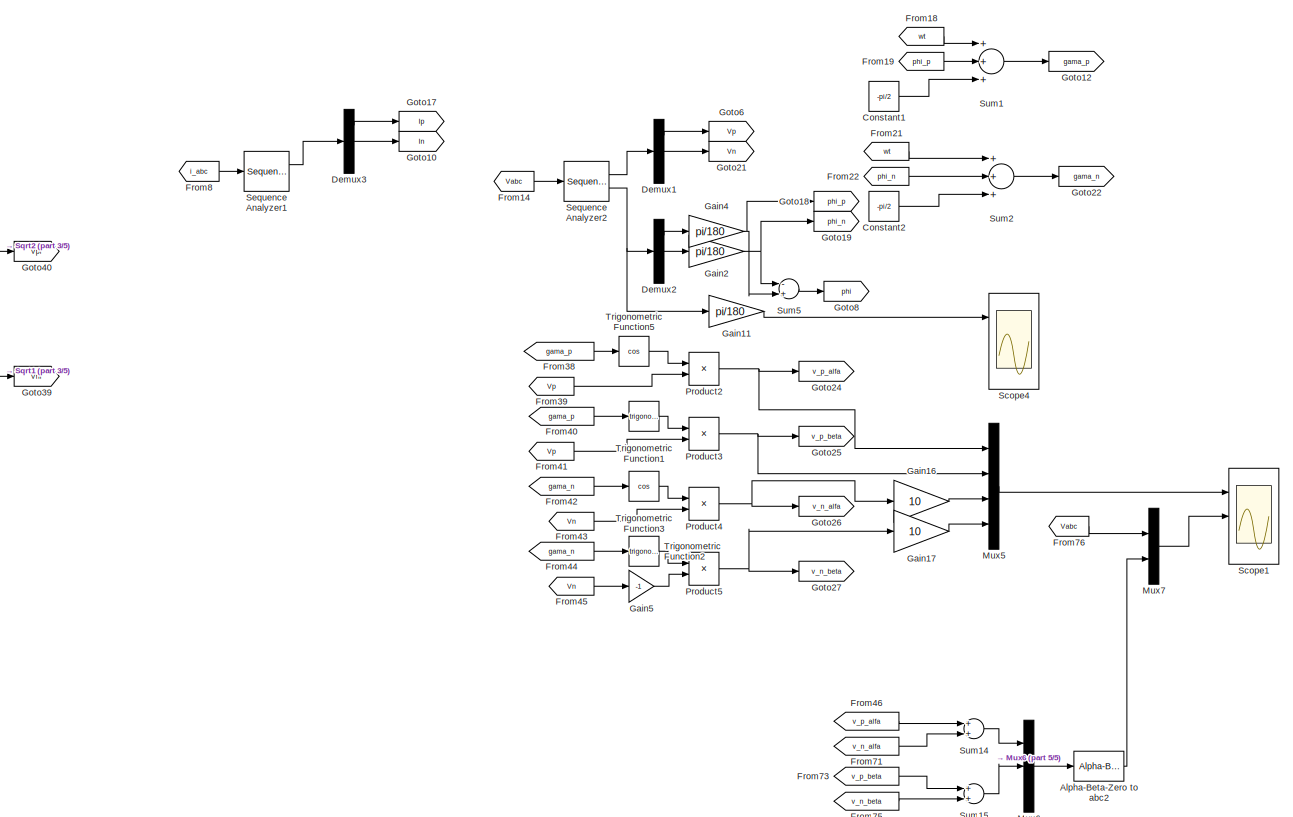
[diagram: root canvas - part 1/5, top center region]
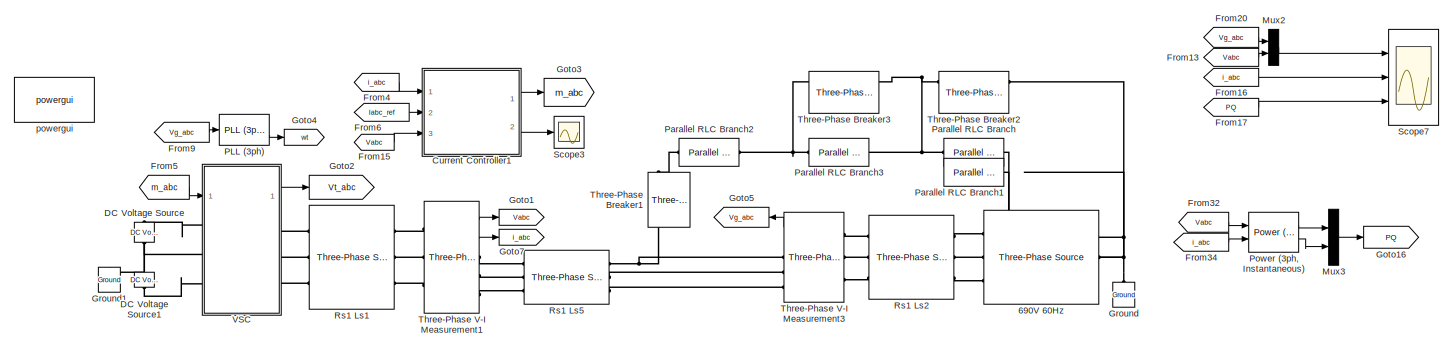
[diagram: root canvas - part 2/5, top right region]
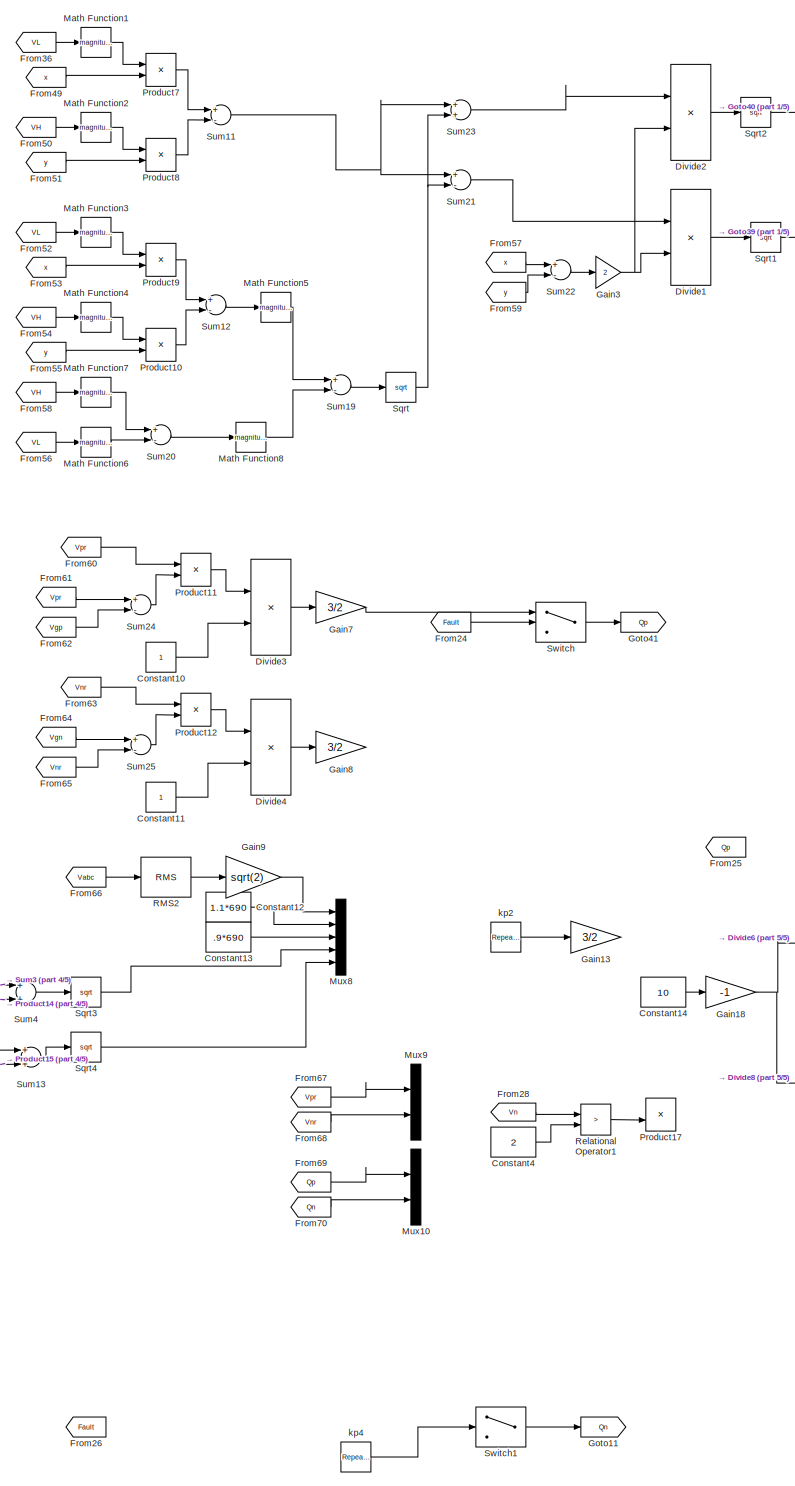
[diagram: root canvas - part 3/5, left side, full height]
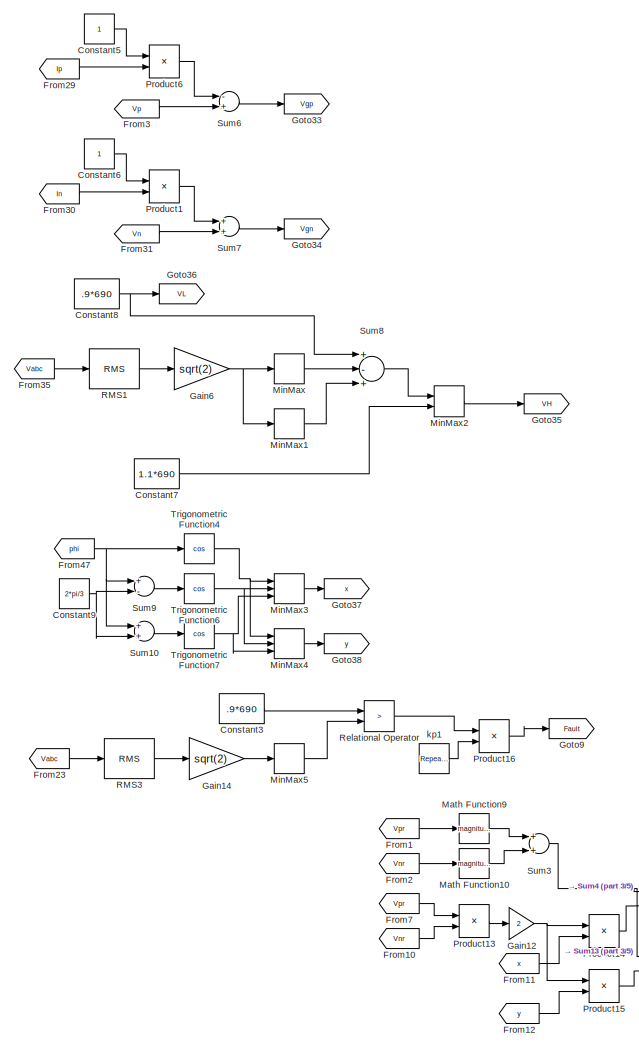
[diagram: root canvas - part 4/5, middle left region]
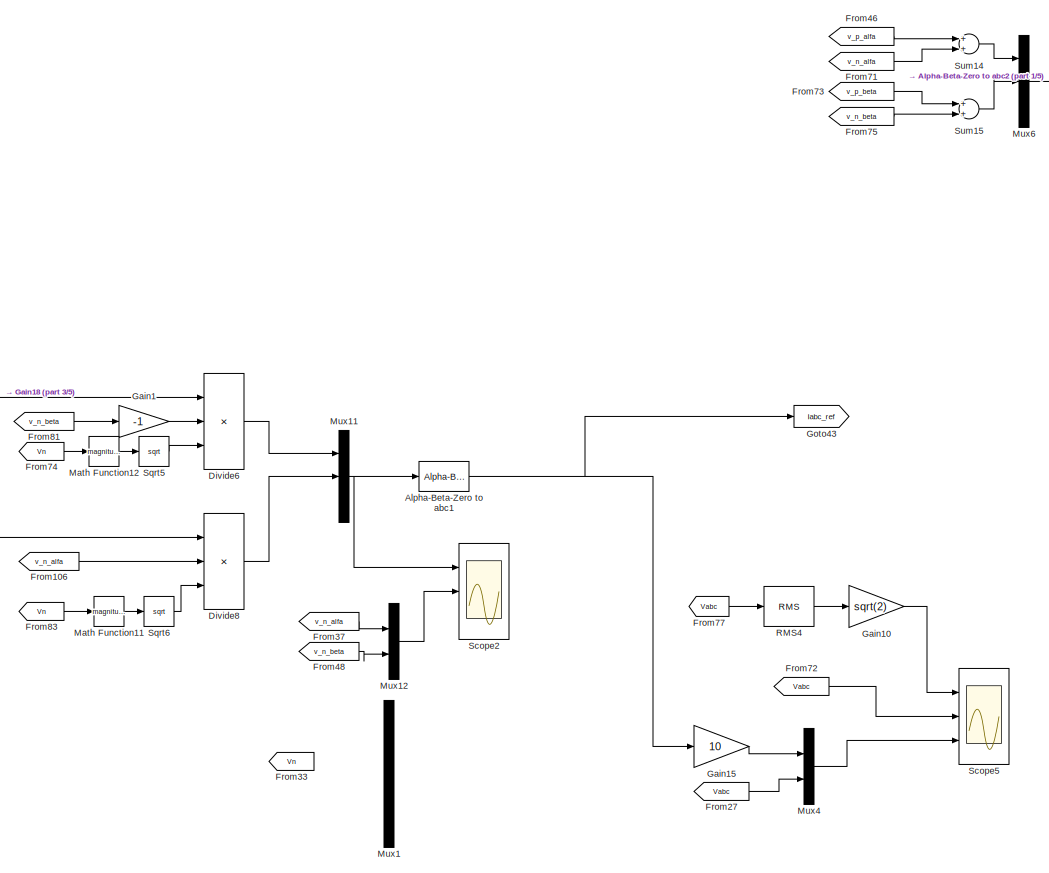
[diagram: root canvas - part 5/5, bottom center region]
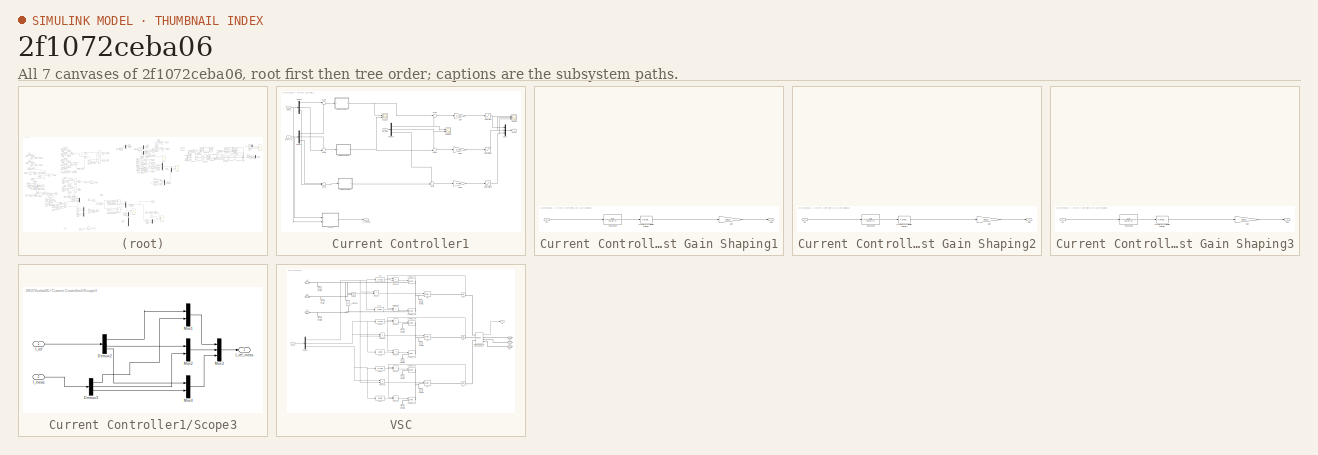
[diagram: thumbnail index - all 7 canvases of the model, root first then tree order]
MODEL slx_2f1072ceba06
KIND model
CONFIG AbsTol = auto
CONFIG FixedStep = auto
CONFIG InitFcn = t_Pref1=0.09; Pref1=10e2;\nt_Pref2=0.3;   Pref2=3e5;\n\nt_Qmax1=.12; t_Qmax2=t_Qmax1+.01;\nt_Qref1=0.09; Qref1=7e5;\nt_Qref2=0.5; Qref2=10e5;\n\nt_Imax1=.2; Imax1=1200;\nt_Imax2=.4; Imax2=1500;\n\nt_k1=0.25; k1=.8;\nt_k2=0.35; k2=.2;\nt_h1=0.45; h1=.9;\nt_h2=0.55; h2=.5;\n\nLg=90e-6;\nl=100e-6; r=2e-3;\ntff=10e-6;\nw=2*pi*60;\nz_lead =966.3602;\np_lead =5.6324e+03;\nVdc=10000;\nVs=690;
CONFIG MaxStep = auto
CONFIG MinStep = auto
CONFIG PreLoadFcn = t1=1;
CONFIG RelTol = 1e-3
CONFIG SampleTimeConstraint = Unconstrained
CONFIG Solver = ode23tb
CONFIG SolverMode = Auto
CONFIG SolverName = ode23tb
CONFIG StartTime = 0.0
CONFIG StopTime = .5
BLOCK [Reference] 690V 60Hz  REF=powerlib/Electrical
Sources/Three-Phase Source
  Ports = [0, 0, 0, 0, 0, 1, 3]
  SourceBlock = powerlib/Electrical\nSources/Three-Phase Source
  SourceType = Three-Phase Source
BLOCK [Reference] Alpha-Beta-Zero to abc1  REF=powerlib_meascontrol/Transformations/Alpha-Beta-Zero
to abc
  Ports = [1, 1]
  SourceBlock = powerlib_meascontrol/Transformations/Alpha-Beta-Zero\nto abc
  SourceType = Alpha-Beta-Zero to abc Transformation
BLOCK [Reference] Alpha-Beta-Zero to abc2  REF=powerlib_meascontrol/Transformations/Alpha-Beta-Zero
to abc
  Ports = [1, 1]
  SourceBlock = powerlib_meascontrol/Transformations/Alpha-Beta-Zero\nto abc
  SourceType = Alpha-Beta-Zero to abc Transformation
BLOCK [Constant] Constant1
  Value = -pi/2
BLOCK [Constant] Constant10
BLOCK [Constant] Constant11
BLOCK [Constant] Constant12
  Value = 1.1*690
BLOCK [Constant] Constant13
  Value = .9*690
BLOCK [Constant] Constant14
  Value = 10
BLOCK [Constant] Constant2
  Value = -pi/2
BLOCK [Constant] Constant3
  Value = .9*690
BLOCK [Constant] Constant4
  Value = 2
BLOCK [Constant] Constant5
BLOCK [Constant] Constant6
BLOCK [Constant] Constant7
  Value = 1.1*690
BLOCK [Constant] Constant8
  Value = .9*690
BLOCK [Constant] Constant9
  Value = 2*pi/3
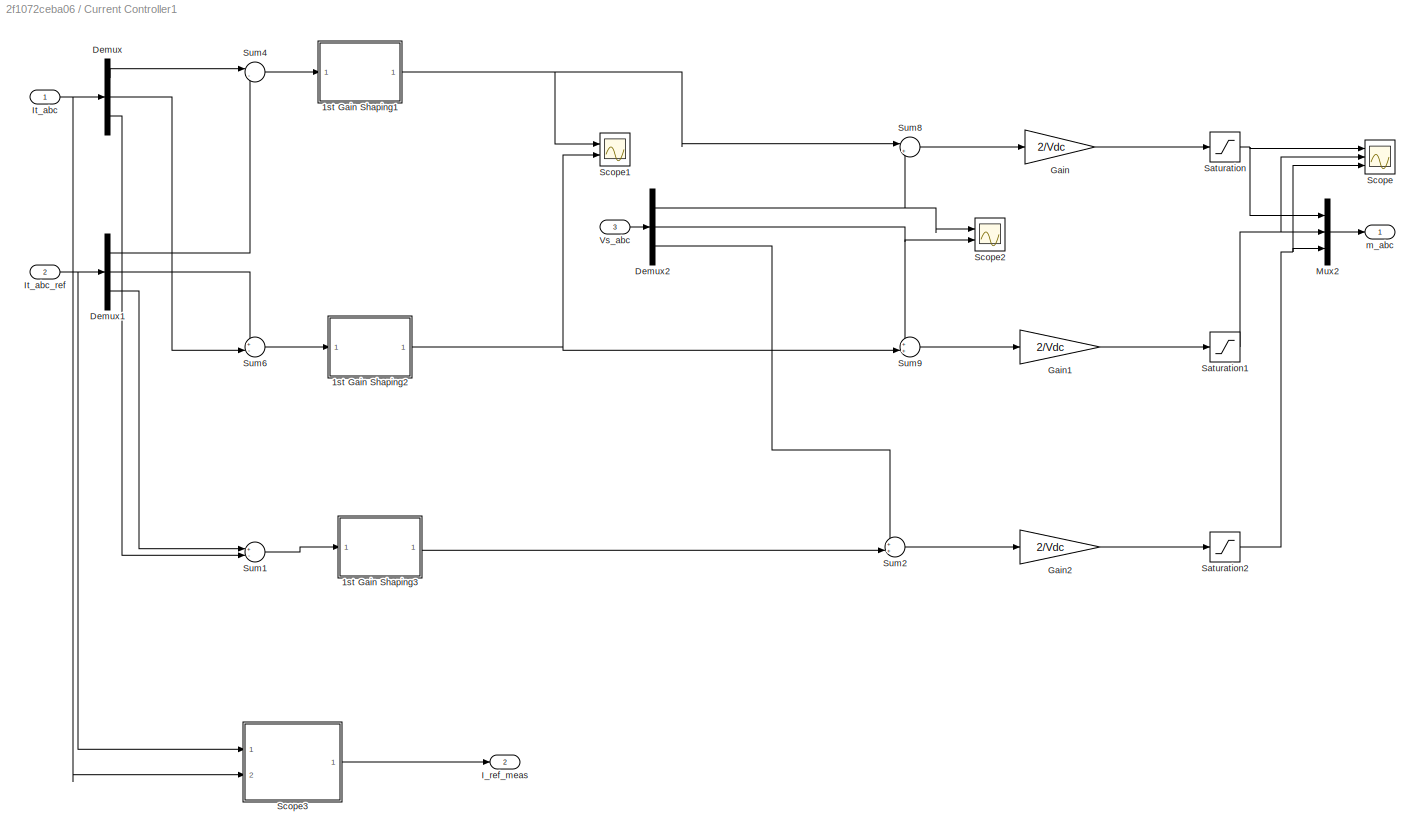
BLOCK [SubSystem] Current Controller1
  Ports = [3, 2]
  RequestExecContextInheritance = off
  Variant = off
BLOCK [SubSystem] Current Controller1/1st Gain Shaping1
  Ports = [1, 1]
  RequestExecContextInheritance = off
  Variant = off
BLOCK [Gain] Current Controller1/1st Gain Shaping1/Gain
  Gain = 38019
  OutDataTypeStr = Inherit: Inherit via internal rule
  ParamDataTypeStr = Inherit: Inherit via internal rule
  SaturateOnIntegerOverflow = off
BLOCK [Inport] Current Controller1/1st Gain Shaping1/In1
  IconDisplay = Port number
BLOCK [Outport] Current Controller1/1st Gain Shaping1/Out1
  IconDisplay = Port number
BLOCK [TransferFcn] Current Controller1/1st Gain Shaping1/Resonant1
  Denominator = [1 0 (w)^2]
  Numerator = [1 r/l]
BLOCK [Reference] Current Controller1/1st Gain Shaping1/Transfer Fcn (with initial outputs)  REF=simulink_extras/Additional
Linear/Transfer Fcn
(with initial outputs)
  Ports = [1, 1]
  SourceBlock = simulink_extras/Additional\nLinear/Transfer Fcn\n(with initial outputs)
  SourceType = Transfer Function with Initial Outputs
BLOCK [SubSystem] Current Controller1/1st Gain Shaping2
  Ports = [1, 1]
  RequestExecContextInheritance = off
  Variant = off
BLOCK [Gain] Current Controller1/1st Gain Shaping2/Gain
  Gain = 38019
  OutDataTypeStr = Inherit: Inherit via internal rule
  ParamDataTypeStr = Inherit: Inherit via internal rule
  SaturateOnIntegerOverflow = off
BLOCK [Inport] Current Controller1/1st Gain Shaping2/In1
  IconDisplay = Port number
BLOCK [Outport] Current Controller1/1st Gain Shaping2/Out1
  IconDisplay = Port number
BLOCK [TransferFcn] Current Controller1/1st Gain Shaping2/Resonant1
  Denominator = [1 0 (w)^2]
  Numerator = [1 r/l]
BLOCK [Reference] Current Controller1/1st Gain Shaping2/Transfer Fcn (with initial outputs)  REF=simulink_extras/Additional
Linear/Transfer Fcn
(with initial outputs)
  Ports = [1, 1]
  SourceBlock = simulink_extras/Additional\nLinear/Transfer Fcn\n(with initial outputs)
  SourceType = Transfer Function with Initial Outputs
BLOCK [SubSystem] Current Controller1/1st Gain Shaping3
  Ports = [1, 1]
  RequestExecContextInheritance = off
  Variant = off
BLOCK [Gain] Current Controller1/1st Gain Shaping3/Gain
  Gain = 38019
  OutDataTypeStr = Inherit: Inherit via internal rule
  ParamDataTypeStr = Inherit: Inherit via internal rule
  SaturateOnIntegerOverflow = off
BLOCK [Inport] Current Controller1/1st Gain Shaping3/In1
  IconDisplay = Port number
BLOCK [Outport] Current Controller1/1st Gain Shaping3/Out1
  IconDisplay = Port number
BLOCK [TransferFcn] Current Controller1/1st Gain Shaping3/Resonant1
  Denominator = [1 0 (w)^2]
  Numerator = [1 r/l]
BLOCK [Reference] Current Controller1/1st Gain Shaping3/Transfer Fcn (with initial outputs)  REF=simulink_extras/Additional
Linear/Transfer Fcn
(with initial outputs)
  Ports = [1, 1]
  SourceBlock = simulink_extras/Additional\nLinear/Transfer Fcn\n(with initial outputs)
  SourceType = Transfer Function with Initial Outputs
BLOCK [Demux] Current Controller1/Demux
  DisplayOption = bar
  Outputs = 3
  Ports = [1, 3]
BLOCK [Demux] Current Controller1/Demux1
  DisplayOption = bar
  Outputs = 3
  Ports = [1, 3]
BLOCK [Demux] Current Controller1/Demux2
  DisplayOption = bar
  Outputs = 3
  Ports = [1, 3]
BLOCK [Gain] Current Controller1/Gain
  Gain = 2/Vdc
  OutDataTypeStr = Inherit: Inherit via internal rule
  ParamDataTypeStr = Inherit: Inherit via internal rule
  SaturateOnIntegerOverflow = off
BLOCK [Gain] Current Controller1/Gain1
  Gain = 2/Vdc
  OutDataTypeStr = Inherit: Inherit via internal rule
  ParamDataTypeStr = Inherit: Inherit via internal rule
  SaturateOnIntegerOverflow = off
BLOCK [Gain] Current Controller1/Gain2
  Gain = 2/Vdc
  OutDataTypeStr = Inherit: Inherit via internal rule
  ParamDataTypeStr = Inherit: Inherit via internal rule
  SaturateOnIntegerOverflow = off
BLOCK [Outport] Current Controller1/I_ref_meas
  IconDisplay = Port number
  Port = 2
BLOCK [Inport] Current Controller1/It_abc
  IconDisplay = Port number
BLOCK [Inport] Current Controller1/It_abc_ref
  IconDisplay = Port number
  Port = 2
BLOCK [Mux] Current Controller1/Mux2
  DisplayOption = bar
  Inputs = 3
  Ports = [3, 1]
BLOCK [Saturate] Current Controller1/Saturation
  InputPortMap = u0
  LowerLimit = -1
  Ports = [1, 1]
  UpperLimit = 1
BLOCK [Saturate] Current Controller1/Saturation1
  InputPortMap = u0
  LowerLimit = -1
  Ports = [1, 1]
  UpperLimit = 1
BLOCK [Saturate] Current Controller1/Saturation2
  InputPortMap = u0
  LowerLimit = -1
  Ports = [1, 1]
  UpperLimit = 1
BLOCK [Scope] Current Controller1/Scope
  NumInputPorts = 3
  Ports = [3]
  ScopeSpecificationString = C++SS(StrPVP('Location','[6, 48, 1372, 727]'),StrPVP('Open','off'),StrPVP('ZoomMode','xonly'),MxPVP('AxesTitles',24,'struct(''axes1'',''%<SignalLabel>'',''axes2'',''%<SignalLabel>'',''axes3'',''%<SignalLabel>'')'),MxPVP('ScopeGraphics',28,'struct(''FigureColor'',''[0.5 0.5 0.5]'',''AxesColor'',''[0 0 0]'',''AxesTickColor'',''[1 1 1]'',''LineColors'',''[1 1 0;1 0 1;0 1 1;1 0 0;0 1 0;0 0 1]'',''Line...<+414ch>
BLOCK [Scope] Current Controller1/Scope1
  NumInputPorts = 2
  Ports = [2]
  ScopeSpecificationString = C++SS(StrPVP('Location','[4, 157, 1370, 836]'),StrPVP('Open','off'),StrPVP('ZoomMode','xonly'),MxPVP('AxesTitles',24,'struct(''axes1'',''%<SignalLabel>'',''axes2'',''%<SignalLabel>'')'),MxPVP('ScopeGraphics',28,'struct(''FigureColor'',''[0.5 0.5 0.5]'',''AxesColor'',''[0 0 0]'',''AxesTickColor'',''[1 1 1]'',''LineColors'',''[1 1 0;1 0 1;0 1 1;1 0 0;0 1 0;0 0 1]'',''LineStyles'',''-|-|-|-|-|-'',''L...<+380ch>
BLOCK [Scope] Current Controller1/Scope2
  NumInputPorts = 2
  Ports = [2]
  ScopeSpecificationString = C++SS(StrPVP('Location','[6, 48, 1372, 727]'),StrPVP('Open','off'),StrPVP('ZoomMode','xonly'),MxPVP('AxesTitles',24,'struct(''axes1'',''%<SignalLabel>'',''axes2'',''%<SignalLabel>'')'),MxPVP('ScopeGraphics',28,'struct(''FigureColor'',''[0.5 0.5 0.5]'',''AxesColor'',''[0 0 0]'',''AxesTickColor'',''[1 1 1]'',''LineColors'',''[1 1 0;1 0 1;0 1 1;1 0 0;0 1 0;0 0 1]'',''LineStyles'',''-|-|-|-|-|-'',''Li...<+378ch>
BLOCK [SubSystem] Current Controller1/Scope3
  Ports = [2, 1]
  RequestExecContextInheritance = off
  Variant = off
BLOCK [Demux] Current Controller1/Scope3/Demux2
  DisplayOption = bar
  Outputs = 3
  Ports = [1, 3]
BLOCK [Demux] Current Controller1/Scope3/Demux3
  DisplayOption = bar
  Outputs = 3
  Ports = [1, 3]
BLOCK [Inport] Current Controller1/Scope3/I_meas
  IconDisplay = Port number
  Port = 2
BLOCK [Inport] Current Controller1/Scope3/I_ref
  IconDisplay = Port number
BLOCK [Outport] Current Controller1/Scope3/I_ref_meas
  IconDisplay = Port number
BLOCK [Mux] Current Controller1/Scope3/Mux1
  DisplayOption = bar
  Inputs = 2
  Ports = [2, 1]
BLOCK [Mux] Current Controller1/Scope3/Mux2
  DisplayOption = bar
  Inputs = 2
  Ports = [2, 1]
BLOCK [Mux] Current Controller1/Scope3/Mux3
  DisplayOption = bar
  Inputs = 3
  Ports = [3, 1]
BLOCK [Mux] Current Controller1/Scope3/Mux4
  DisplayOption = bar
  Inputs = 2
  Ports = [2, 1]
BLOCK [Sum] Current Controller1/Sum1
  IconShape = round
  InputSameDT = off
  Inputs = +-|
  OutDataTypeStr = Inherit: Inherit via internal rule
  Ports = [2, 1]
  SaturateOnIntegerOverflow = off
BLOCK [Sum] Current Controller1/Sum2
  IconShape = round
  InputSameDT = off
  Inputs = ++|
  OutDataTypeStr = Inherit: Inherit via internal rule
  Ports = [2, 1]
  SaturateOnIntegerOverflow = off
BLOCK [Sum] Current Controller1/Sum4
  IconShape = round
  InputSameDT = off
  Inputs = |-+
  OutDataTypeStr = Inherit: Inherit via internal rule
  Ports = [2, 1]
  SaturateOnIntegerOverflow = off
BLOCK [Sum] Current Controller1/Sum6
  IconShape = round
  InputSameDT = off
  Inputs = +-|
  OutDataTypeStr = Inherit: Inherit via internal rule
  Ports = [2, 1]
  SaturateOnIntegerOverflow = off
BLOCK [Sum] Current Controller1/Sum8
  IconShape = round
  InputSameDT = off
  Inputs = |++
  OutDataTypeStr = Inherit: Inherit via internal rule
  Ports = [2, 1]
  SaturateOnIntegerOverflow = off
BLOCK [Sum] Current Controller1/Sum9
  IconShape = round
  InputSameDT = off
  Inputs = ++|
  OutDataTypeStr = Inherit: Inherit via internal rule
  Ports = [2, 1]
  SaturateOnIntegerOverflow = off
BLOCK [Inport] Current Controller1/Vs_abc
  IconDisplay = Port number
  Port = 3
BLOCK [Outport] Current Controller1/m_abc
  IconDisplay = Port number
BLOCK [Reference] DC Voltage Source  REF=powerlib/Electrical
Sources/DC Voltage Source
  Ports = [0, 0, 0, 0, 0, 1, 1]
  SourceBlock = powerlib/Electrical\nSources/DC Voltage Source
  SourceType = DC Voltage Source
BLOCK [Reference] DC Voltage Source1  REF=powerlib/Electrical
Sources/DC Voltage Source
  Ports = [0, 0, 0, 0, 0, 1, 1]
  SourceBlock = powerlib/Electrical\nSources/DC Voltage Source
  SourceType = DC Voltage Source
BLOCK [Demux] Demux1
  DisplayOption = bar
  Outputs = 3
  Ports = [1, 3]
BLOCK [Demux] Demux2
  DisplayOption = bar
  Outputs = 3
  Ports = [1, 3]
BLOCK [Demux] Demux3
  DisplayOption = bar
  Outputs = 3
  Ports = [1, 3]
BLOCK [Product] Divide1
  InputSameDT = off
  Inputs = */
  OutDataTypeStr = Inherit: Inherit via internal rule
  Ports = [2, 1]
  RndMeth = Floor
  SaturateOnIntegerOverflow = off
BLOCK [Product] Divide2
  InputSameDT = off
  Inputs = */
  OutDataTypeStr = Inherit: Inherit via internal rule
  Ports = [2, 1]
  RndMeth = Floor
  SaturateOnIntegerOverflow = off
BLOCK [Product] Divide3
  InputSameDT = off
  Inputs = */
  OutDataTypeStr = Inherit: Inherit via internal rule
  Ports = [2, 1]
  RndMeth = Floor
  SaturateOnIntegerOverflow = off
BLOCK [Product] Divide4
  InputSameDT = off
  Inputs = */
  OutDataTypeStr = Inherit: Inherit via internal rule
  Ports = [2, 1]
  RndMeth = Floor
  SaturateOnIntegerOverflow = off
BLOCK [Product] Divide6
  InputSameDT = off
  Inputs = **/
  OutDataTypeStr = Inherit: Inherit via internal rule
  Ports = [3, 1]
  RndMeth = Floor
  SaturateOnIntegerOverflow = off
BLOCK [Product] Divide8
  InputSameDT = off
  Inputs = **/
  OutDataTypeStr = Inherit: Inherit via internal rule
  Ports = [3, 1]
  RndMeth = Floor
  SaturateOnIntegerOverflow = off
BLOCK [From] From1
  GotoTag = Vpr
BLOCK [From] From10
  GotoTag = Vnr
BLOCK [From] From106
  GotoTag = v_n_alfa
BLOCK [From] From11
  GotoTag = x
BLOCK [From] From12
  GotoTag = y
BLOCK [From] From13
  GotoTag = Vabc
BLOCK [From] From14
  GotoTag = Vabc
BLOCK [From] From15
  GotoTag = Vabc
BLOCK [From] From16
  GotoTag = i_abc
BLOCK [From] From17
  GotoTag = PQ
BLOCK [From] From18
  GotoTag = wt
BLOCK [From] From19
  GotoTag = phi_p
BLOCK [From] From2
  GotoTag = Vnr
BLOCK [From] From20
  GotoTag = Vg_abc
BLOCK [From] From21
  GotoTag = wt
BLOCK [From] From22
  GotoTag = phi_n
BLOCK [From] From23
  GotoTag = Vabc
BLOCK [From] From24
  GotoTag = Fault
BLOCK [From] From25
  GotoTag = Qp
BLOCK [From] From26
  GotoTag = Fault
BLOCK [From] From27
  GotoTag = Vabc
BLOCK [From] From28
  GotoTag = Vn
BLOCK [From] From29
  GotoTag = Ip
BLOCK [From] From3
  GotoTag = Vp
BLOCK [From] From30
  GotoTag = In
BLOCK [From] From31
  GotoTag = Vn
BLOCK [From] From32
  GotoTag = Vabc
BLOCK [From] From33
  GotoTag = Vn
BLOCK [From] From34
  GotoTag = i_abc
BLOCK [From] From35
  GotoTag = Vabc
BLOCK [From] From36
  GotoTag = VL
BLOCK [From] From37
  GotoTag = v_n_alfa
BLOCK [From] From38
  GotoTag = gama_p
BLOCK [From] From39
  GotoTag = Vp
BLOCK [From] From4
  GotoTag = i_abc
BLOCK [From] From40
  GotoTag = gama_p
BLOCK [From] From41
  GotoTag = Vp
BLOCK [From] From42
  GotoTag = gama_n
BLOCK [From] From43
  GotoTag = Vn
BLOCK [From] From44
  GotoTag = gama_n
BLOCK [From] From45
  GotoTag = Vn
BLOCK [From] From46
  GotoTag = v_p_alfa
BLOCK [From] From47
  GotoTag = phi
BLOCK [From] From48
  GotoTag = v_n_beta
BLOCK [From] From49
  GotoTag = x
BLOCK [From] From5
  GotoTag = m_abc
BLOCK [From] From50
  GotoTag = VH
BLOCK [From] From51
  GotoTag = y
BLOCK [From] From52
  GotoTag = VL
BLOCK [From] From53
  GotoTag = x
BLOCK [From] From54
  GotoTag = VH
BLOCK [From] From55
  GotoTag = y
BLOCK [From] From56
  GotoTag = VL
BLOCK [From] From57
  GotoTag = x
BLOCK [From] From58
  GotoTag = VH
BLOCK [From] From59
  GotoTag = y
BLOCK [From] From6
  GotoTag = Iabc_ref
BLOCK [From] From60
  GotoTag = Vpr
BLOCK [From] From61
  GotoTag = Vpr
BLOCK [From] From62
  GotoTag = Vgp
BLOCK [From] From63
  GotoTag = Vnr
BLOCK [From] From64
  GotoTag = Vgn
BLOCK [From] From65
  GotoTag = Vnr
BLOCK [From] From66
  GotoTag = Vabc
BLOCK [From] From67
  GotoTag = Vpr
BLOCK [From] From68
  GotoTag = Vnr
BLOCK [From] From69
  GotoTag = Qp
BLOCK [From] From7
  GotoTag = Vpr
BLOCK [From] From70
  GotoTag = Qn
BLOCK [From] From71
  GotoTag = v_n_alfa
BLOCK [From] From72
  GotoTag = Vabc
BLOCK [From] From73
  GotoTag = v_p_beta
BLOCK [From] From74
  GotoTag = Vn
BLOCK [From] From75
  GotoTag = v_n_beta
BLOCK [From] From76
  GotoTag = Vabc
BLOCK [From] From77
  GotoTag = Vabc
BLOCK [From] From8
  GotoTag = i_abc
BLOCK [From] From81
  GotoTag = v_n_beta
BLOCK [From] From83
  GotoTag = Vn
BLOCK [From] From9
  GotoTag = Vg_abc
BLOCK [Gain] Gain1
  Gain = -1
  OutDataTypeStr = Inherit: Inherit via internal rule
  ParamDataTypeStr = Inherit: Inherit via internal rule
  SaturateOnIntegerOverflow = off
BLOCK [Gain] Gain10
  Gain = sqrt(2)
  OutDataTypeStr = Inherit: Inherit via internal rule
  ParamDataTypeStr = Inherit: Inherit via internal rule
  SaturateOnIntegerOverflow = off
BLOCK [Gain] Gain11
  Gain = pi/180
  OutDataTypeStr = Inherit: Inherit via internal rule
  ParamDataTypeStr = Inherit: Inherit via internal rule
  SaturateOnIntegerOverflow = off
BLOCK [Gain] Gain12
  Gain = 2
  OutDataTypeStr = Inherit: Inherit via internal rule
  ParamDataTypeStr = Inherit: Inherit via internal rule
  SaturateOnIntegerOverflow = off
BLOCK [Gain] Gain13
  Gain = 3/2
  OutDataTypeStr = Inherit: Inherit via internal rule
  ParamDataTypeStr = Inherit: Inherit via internal rule
  SaturateOnIntegerOverflow = off
BLOCK [Gain] Gain14
  Gain = sqrt(2)
  OutDataTypeStr = Inherit: Inherit via internal rule
  ParamDataTypeStr = Inherit: Inherit via internal rule
  SaturateOnIntegerOverflow = off
BLOCK [Gain] Gain15
  Gain = 10
  OutDataTypeStr = Inherit: Inherit via internal rule
  ParamDataTypeStr = Inherit: Inherit via internal rule
  SaturateOnIntegerOverflow = off
BLOCK [Gain] Gain16
  Gain = 10
  OutDataTypeStr = Inherit: Inherit via internal rule
  ParamDataTypeStr = Inherit: Inherit via internal rule
  SaturateOnIntegerOverflow = off
BLOCK [Gain] Gain17
  Gain = 10
  OutDataTypeStr = Inherit: Inherit via internal rule
  ParamDataTypeStr = Inherit: Inherit via internal rule
  SaturateOnIntegerOverflow = off
BLOCK [Gain] Gain18
  Gain = -1
  OutDataTypeStr = Inherit: Inherit via internal rule
  ParamDataTypeStr = Inherit: Inherit via internal rule
  SaturateOnIntegerOverflow = off
BLOCK [Gain] Gain2
  Gain = pi/180
  OutDataTypeStr = Inherit: Inherit via internal rule
  ParamDataTypeStr = Inherit: Inherit via internal rule
  SaturateOnIntegerOverflow = off
BLOCK [Gain] Gain3
  Gain = 2
  OutDataTypeStr = Inherit: Inherit via internal rule
  ParamDataTypeStr = Inherit: Inherit via internal rule
  SaturateOnIntegerOverflow = off
BLOCK [Gain] Gain4
  Gain = pi/180
  OutDataTypeStr = Inherit: Inherit via internal rule
  ParamDataTypeStr = Inherit: Inherit via internal rule
  SaturateOnIntegerOverflow = off
BLOCK [Gain] Gain5
  Gain = -1
  OutDataTypeStr = Inherit: Inherit via internal rule
  ParamDataTypeStr = Inherit: Inherit via internal rule
  SaturateOnIntegerOverflow = off
BLOCK [Gain] Gain6
  Gain = sqrt(2)
  OutDataTypeStr = Inherit: Inherit via internal rule
  ParamDataTypeStr = Inherit: Inherit via internal rule
  SaturateOnIntegerOverflow = off
BLOCK [Gain] Gain7
  Gain = 3/2
  OutDataTypeStr = Inherit: Inherit via internal rule
  ParamDataTypeStr = Inherit: Inherit via internal rule
  SaturateOnIntegerOverflow = off
BLOCK [Gain] Gain8
  Gain = 3/2
  OutDataTypeStr = Inherit: Inherit via internal rule
  ParamDataTypeStr = Inherit: Inherit via internal rule
  SaturateOnIntegerOverflow = off
BLOCK [Gain] Gain9
  Gain = sqrt(2)
  OutDataTypeStr = Inherit: Inherit via internal rule
  ParamDataTypeStr = Inherit: Inherit via internal rule
  SaturateOnIntegerOverflow = off
BLOCK [Goto] Goto1
  GotoTag = Vabc
BLOCK [Goto] Goto10
  GotoTag = In
BLOCK [Goto] Goto11
  GotoTag = Qn
BLOCK [Goto] Goto12
  GotoTag = gama_p
BLOCK [Goto] Goto16
  GotoTag = PQ
BLOCK [Goto] Goto17
  GotoTag = Ip
BLOCK [Goto] Goto18
  GotoTag = phi_p
BLOCK [Goto] Goto19
  GotoTag = phi_n
BLOCK [Goto] Goto2
  GotoTag = Vt_abc
BLOCK [Goto] Goto21
  GotoTag = Vn
BLOCK [Goto] Goto22
  GotoTag = gama_n
BLOCK [Goto] Goto24
  GotoTag = v_p_alfa
BLOCK [Goto] Goto25
  GotoTag = v_p_beta
BLOCK [Goto] Goto26
  GotoTag = v_n_alfa
BLOCK [Goto] Goto27
  GotoTag = v_n_beta
BLOCK [Goto] Goto3
  GotoTag = m_abc
BLOCK [Goto] Goto33
  GotoTag = Vgp
BLOCK [Goto] Goto34
  GotoTag = Vgn
BLOCK [Goto] Goto35
  GotoTag = VH
BLOCK [Goto] Goto36
  GotoTag = VL
BLOCK [Goto] Goto37
  GotoTag = x
BLOCK [Goto] Goto38
  GotoTag = y
BLOCK [Goto] Goto39
  GotoTag = Vnr
BLOCK [Goto] Goto4
  GotoTag = wt
BLOCK [Goto] Goto40
  GotoTag = Vpr
BLOCK [Goto] Goto41
  GotoTag = Qp
BLOCK [Goto] Goto43
  GotoTag = Iabc_ref
BLOCK [Goto] Goto5
  GotoTag = Vg_abc
BLOCK [Goto] Goto6
  GotoTag = Vp
BLOCK [Goto] Goto7
  GotoTag = i_abc
BLOCK [Goto] Goto8
  GotoTag = phi
BLOCK [Goto] Goto9
  GotoTag = Fault
BLOCK [Reference] Ground  REF=powerlib/Elements/Ground
  Ports = [0, 0, 0, 0, 0, 1]
  SourceBlock = powerlib/Elements/Ground
  SourceType = Ground
BLOCK [Reference] Ground1  REF=powerlib/Elements/Ground
  Ports = [0, 0, 0, 0, 0, 1]
  SourceBlock = powerlib/Elements/Ground
  SourceType = Ground
BLOCK [Math] Math Function1
  Operator = magnitude^2
  Ports = [1, 1]
BLOCK [Math] Math Function10
  Operator = magnitude^2
  Ports = [1, 1]
BLOCK [Math] Math Function11
  Operator = magnitude^2
  Ports = [1, 1]
BLOCK [Math] Math Function12
  Operator = magnitude^2
  Ports = [1, 1]
BLOCK [Math] Math Function2
  Operator = magnitude^2
  Ports = [1, 1]
BLOCK [Math] Math Function3
  Operator = magnitude^2
  Ports = [1, 1]
BLOCK [Math] Math Function4
  Operator = magnitude^2
  Ports = [1, 1]
BLOCK [Math] Math Function5
  Operator = magnitude^2
  Ports = [1, 1]
BLOCK [Math] Math Function6
  Operator = magnitude^2
  Ports = [1, 1]
BLOCK [Math] Math Function7
  Operator = magnitude^2
  Ports = [1, 1]
BLOCK [Math] Math Function8
  Operator = magnitude^2
  Ports = [1, 1]
BLOCK [Math] Math Function9
  Operator = magnitude^2
  Ports = [1, 1]
BLOCK [MinMax] MinMax
  InputSameDT = off
  Ports = [1, 1]
  SaturateOnIntegerOverflow = off
BLOCK [MinMax] MinMax1
  Function = max
  InputSameDT = off
  Ports = [1, 1]
  SaturateOnIntegerOverflow = off
BLOCK [MinMax] MinMax2
  InputSameDT = off
  Inputs = 2
  Ports = [2, 1]
  SaturateOnIntegerOverflow = off
BLOCK [MinMax] MinMax3
  Function = max
  InputSameDT = off
  Inputs = 3
  Ports = [3, 1]
  SaturateOnIntegerOverflow = off
BLOCK [MinMax] MinMax4
  InputSameDT = off
  Inputs = 3
  Ports = [3, 1]
  SaturateOnIntegerOverflow = off
BLOCK [MinMax] MinMax5
  InputSameDT = off
  Ports = [1, 1]
  SaturateOnIntegerOverflow = off
BLOCK [Mux] Mux1
  DisplayOption = bar
  Inputs = 6
  Ports = [6, 1]
BLOCK [Mux] Mux10
  DisplayOption = bar
  Inputs = 2
  Ports = [2, 1]
BLOCK [Mux] Mux11
  DisplayOption = bar
  Inputs = 3
  Ports = [3, 1]
BLOCK [Mux] Mux12
  DisplayOption = bar
  Inputs = 2
  Ports = [2, 1]
BLOCK [Mux] Mux2
  DisplayOption = bar
  Inputs = 2
  Ports = [2, 1]
BLOCK [Mux] Mux3
  DisplayOption = bar
  Inputs = 2
  Ports = [2, 1]
BLOCK [Mux] Mux4
  DisplayOption = bar
  Inputs = 2
  Ports = [2, 1]
BLOCK [Mux] Mux5
  DisplayOption = bar
  Ports = [4, 1]
BLOCK [Mux] Mux6
  DisplayOption = bar
  Inputs = 3
  Ports = [3, 1]
BLOCK [Mux] Mux7
  DisplayOption = bar
  Inputs = 2
  Ports = [2, 1]
BLOCK [Mux] Mux8
  DisplayOption = bar
  Inputs = 5
  Ports = [5, 1]
BLOCK [Mux] Mux9
  DisplayOption = bar
  Inputs = 2
  Ports = [2, 1]
BLOCK [Reference] PLL (3ph)  REF=powerlib_meascontrol/PLL/PLL
(3ph)
  Ports = [1, 2]
  SourceBlock = powerlib_meascontrol/PLL/PLL\n(3ph)
  SourceType = PLL (3ph)
BLOCK [Reference] Parallel RLC Branch  REF=powerlib/Elements/Parallel RLC Branch
  AttributesFormatString = \n
  Ports = [0, 0, 0, 0, 0, 1, 1]
  SourceBlock = powerlib/Elements/Parallel RLC Branch
  SourceType = Parallel RLC Branch
BLOCK [Reference] Parallel RLC Branch1  REF=powerlib/Elements/Parallel RLC Branch
  AttributesFormatString = \n
  Ports = [0, 0, 0, 0, 0, 1, 1]
  SourceBlock = powerlib/Elements/Parallel RLC Branch
  SourceType = Parallel RLC Branch
BLOCK [Reference] Parallel RLC Branch2  REF=powerlib/Elements/Parallel RLC Branch
  AttributesFormatString = \n
  Ports = [0, 0, 0, 0, 0, 1, 1]
  SourceBlock = powerlib/Elements/Parallel RLC Branch
  SourceType = Parallel RLC Branch
BLOCK [Reference] Parallel RLC Branch3  REF=powerlib/Elements/Parallel RLC Branch
  AttributesFormatString = \n
  Ports = [0, 0, 0, 0, 0, 1, 1]
  SourceBlock = powerlib/Elements/Parallel RLC Branch
  SourceType = Parallel RLC Branch
BLOCK [Reference] Power (3ph, Instantaneous)  REF=powerlib_meascontrol/Measurements/Power
(3ph, Instantaneous)
  Ports = [2, 2]
  SourceBlock = powerlib_meascontrol/Measurements/Power\n(3ph, Instantaneous)
  SourceType = Power (3ph, Instantaneous)
BLOCK [Product] Product1
  InputSameDT = off
  OutDataTypeStr = Inherit: Inherit via internal rule
  Ports = [2, 1]
  RndMeth = Floor
  SaturateOnIntegerOverflow = off
BLOCK [Product] Product10
  InputSameDT = off
  OutDataTypeStr = Inherit: Inherit via internal rule
  Ports = [2, 1]
  RndMeth = Floor
  SaturateOnIntegerOverflow = off
BLOCK [Product] Product11
  InputSameDT = off
  OutDataTypeStr = Inherit: Inherit via internal rule
  Ports = [2, 1]
  RndMeth = Floor
  SaturateOnIntegerOverflow = off
BLOCK [Product] Product12
  InputSameDT = off
  OutDataTypeStr = Inherit: Inherit via internal rule
  Ports = [2, 1]
  RndMeth = Floor
  SaturateOnIntegerOverflow = off
BLOCK [Product] Product13
  InputSameDT = off
  OutDataTypeStr = Inherit: Inherit via internal rule
  Ports = [2, 1]
  RndMeth = Floor
  SaturateOnIntegerOverflow = off
BLOCK [Product] Product14
  InputSameDT = off
  OutDataTypeStr = Inherit: Inherit via internal rule
  Ports = [2, 1]
  RndMeth = Floor
  SaturateOnIntegerOverflow = off
BLOCK [Product] Product15
  InputSameDT = off
  OutDataTypeStr = Inherit: Inherit via internal rule
  Ports = [2, 1]
  RndMeth = Floor
  SaturateOnIntegerOverflow = off
BLOCK [Product] Product16
  InputSameDT = off
  OutDataTypeStr = Inherit: Inherit via internal rule
  Ports = [2, 1]
  RndMeth = Floor
  SaturateOnIntegerOverflow = off
BLOCK [Product] Product17
  InputSameDT = off
  OutDataTypeStr = Inherit: Inherit via internal rule
  Ports = [2, 1]
  RndMeth = Floor
  SaturateOnIntegerOverflow = off
BLOCK [Product] Product2
  InputSameDT = off
  OutDataTypeStr = Inherit: Inherit via internal rule
  Ports = [2, 1]
  RndMeth = Floor
  SaturateOnIntegerOverflow = off
BLOCK [Product] Product3
  InputSameDT = off
  OutDataTypeStr = Inherit: Inherit via internal rule
  Ports = [2, 1]
  RndMeth = Floor
  SaturateOnIntegerOverflow = off
BLOCK [Product] Product4
  InputSameDT = off
  OutDataTypeStr = Inherit: Inherit via internal rule
  Ports = [2, 1]
  RndMeth = Floor
  SaturateOnIntegerOverflow = off
BLOCK [Product] Product5
  InputSameDT = off
  OutDataTypeStr = Inherit: Inherit via internal rule
  Ports = [2, 1]
  RndMeth = Floor
  SaturateOnIntegerOverflow = off
BLOCK [Product] Product6
  InputSameDT = off
  OutDataTypeStr = Inherit: Inherit via internal rule
  Ports = [2, 1]
  RndMeth = Floor
  SaturateOnIntegerOverflow = off
BLOCK [Product] Product7
  InputSameDT = off
  OutDataTypeStr = Inherit: Inherit via internal rule
  Ports = [2, 1]
  RndMeth = Floor
  SaturateOnIntegerOverflow = off
BLOCK [Product] Product8
  InputSameDT = off
  OutDataTypeStr = Inherit: Inherit via internal rule
  Ports = [2, 1]
  RndMeth = Floor
  SaturateOnIntegerOverflow = off
BLOCK [Product] Product9
  InputSameDT = off
  OutDataTypeStr = Inherit: Inherit via internal rule
  Ports = [2, 1]
  RndMeth = Floor
  SaturateOnIntegerOverflow = off
BLOCK [Reference] RMS1  REF=powerlib_meascontrol/Measurements/RMS
  Ports = [1, 1]
  SourceBlock = powerlib_meascontrol/Measurements/RMS
  SourceType = RMS
BLOCK [Reference] RMS2  REF=powerlib_meascontrol/Measurements/RMS
  Ports = [1, 1]
  SourceBlock = powerlib_meascontrol/Measurements/RMS
  SourceType = RMS
BLOCK [Reference] RMS3  REF=powerlib_meascontrol/Measurements/RMS
  Ports = [1, 1]
  SourceBlock = powerlib_meascontrol/Measurements/RMS
  SourceType = RMS
BLOCK [Reference] RMS4  REF=powerlib_meascontrol/Measurements/RMS
  Ports = [1, 1]
  SourceBlock = powerlib_meascontrol/Measurements/RMS
  SourceType = RMS
BLOCK [RelationalOperator] Relational Operator
  InputSameDT = off
  Operator = >
  OutDataTypeStr = boolean
  Ports = [2, 1]
BLOCK [RelationalOperator] Relational Operator1
  InputSameDT = off
  Operator = >
  OutDataTypeStr = boolean
  Ports = [2, 1]
BLOCK [Reference] Rs1  Ls1  REF=powerlib/Elements/Three-Phase
Series RLC Branch
  AttributesFormatString = \n
  Ports = [0, 0, 0, 0, 0, 3, 3]
  SourceBlock = powerlib/Elements/Three-Phase\nSeries RLC Branch
  SourceType = Three-Phase Series RLC Branch
BLOCK [Reference] Rs1  Ls2  REF=powerlib/Elements/Three-Phase
Series RLC Branch
  AttributesFormatString = \n
  Ports = [0, 0, 0, 0, 0, 3, 3]
  SourceBlock = powerlib/Elements/Three-Phase\nSeries RLC Branch
  SourceType = Three-Phase Series RLC Branch
BLOCK [Reference] Rs1  Ls5  REF=powerlib/Elements/Three-Phase
Series RLC Branch
  AttributesFormatString = \n
  Ports = [0, 0, 0, 0, 0, 3, 3]
  SourceBlock = powerlib/Elements/Three-Phase\nSeries RLC Branch
  SourceType = Three-Phase Series RLC Branch
BLOCK [Scope] Scope1
  NumInputPorts = 3
  Ports = [3]
  ScopeSpecificationString = Simulink.scopes.TimeScopeBlockCfg('CurrentConfiguration', extmgr.ConfigurationSet(extmgr.Configuration('Core','General UI',true),extmgr.Configuration('Core','Source UI',true),extmgr.Configuration('Sources','WiredSimulink',true,'DataLoggingSaveFormat','StructureWithTime','DataLoggingDecimation','100','SampleTime','0'),extmgr.Configuration('Visuals','Time Domain',true,'SerializedDisplays',{struct('M...<+3666ch>
BLOCK [Scope] Scope2
  NumInputPorts = 3
  Ports = [3]
  ScopeSpecificationString = Simulink.scopes.TimeScopeBlockCfg('CurrentConfiguration', extmgr.ConfigurationSet(extmgr.Configuration('Core','General UI',true),extmgr.Configuration('Core','Source UI',true),extmgr.Configuration('Sources','WiredSimulink',true,'DataLoggingVariableName','ScopeData1','DataLoggingSaveFormat','StructureWithTime','DataLoggingDecimation','100','SampleTime','0'),extmgr.Configuration('Visuals','Time Domai...<+3615ch>
BLOCK [Scope] Scope3
  Ports = [1]
  ScopeSpecificationString = Simulink.scopes.TimeScopeBlockCfg('CurrentConfiguration', extmgr.ConfigurationSet(extmgr.Configuration('Core','General UI',true),extmgr.Configuration('Core','Source UI',true),extmgr.Configuration('Sources','WiredSimulink',true,'DataLoggingVariableName','ScopeData6','DataLoggingSaveFormat','Array','DataLoggingDecimation','1'),extmgr.Configuration('Visuals','Time Domain',true,'SerializedDisplays',{s...<+1808ch>
BLOCK [Scope] Scope4
  NumInputPorts = 3
  Ports = [3]
  ScopeSpecificationString = Simulink.scopes.TimeScopeBlockCfg('CurrentConfiguration', extmgr.ConfigurationSet(extmgr.Configuration('Core','General UI',true),extmgr.Configuration('Core','Source UI',true),extmgr.Configuration('Sources','WiredSimulink',true,'DataLoggingSaveFormat','StructureWithTime','DataLoggingDecimation','100','SampleTime','0','DataLoggingVariableName','ScopeData2'),extmgr.Configuration('Visuals','Time Domai...<+3570ch>
BLOCK [Scope] Scope5
  NumInputPorts = 3
  Ports = [3]
  ScopeSpecificationString = Simulink.scopes.TimeScopeBlockCfg('CurrentConfiguration', extmgr.ConfigurationSet(extmgr.Configuration('Core','General UI',true),extmgr.Configuration('Core','Source UI',true),extmgr.Configuration('Sources','WiredSimulink',true,'DataLoggingVariableName','ScopeData8','DataLoggingSaveFormat','StructureWithTime','DataLoggingDecimation','100','SampleTime','0'),extmgr.Configuration('Visuals','Time Domai...<+3742ch>
BLOCK [Scope] Scope7
  NumInputPorts = 3
  Ports = [3]
  ScopeSpecificationString = Simulink.scopes.TimeScopeBlockCfg('CurrentConfiguration', extmgr.ConfigurationSet(extmgr.Configuration('Core','General UI',true),extmgr.Configuration('Core','Source UI',true),extmgr.Configuration('Sources','WiredSimulink',true,'DataLoggingVariableName','ScopeData9','DataLoggingSaveFormat','StructureWithTime','DataLoggingDecimation','100','SampleTime','0'),extmgr.Configuration('Visuals','Time Domai...<+3108ch>
BLOCK [Reference] Sequence Analyzer1  REF=powerlib_meascontrol/Measurements/Sequence Analyzer
  Ports = [1, 2]
  SourceBlock = powerlib_meascontrol/Measurements/Sequence Analyzer
  SourceType = Sequence Analyzer
BLOCK [Reference] Sequence Analyzer2  REF=powerlib_meascontrol/Measurements/Sequence Analyzer
  Ports = [1, 2]
  SourceBlock = powerlib_meascontrol/Measurements/Sequence Analyzer
  SourceType = Sequence Analyzer
BLOCK [Sqrt] Sqrt
BLOCK [Sqrt] Sqrt1
BLOCK [Sqrt] Sqrt2
BLOCK [Sqrt] Sqrt3
BLOCK [Sqrt] Sqrt4
BLOCK [Sqrt] Sqrt5
BLOCK [Sqrt] Sqrt6
BLOCK [Sum] Sum1
  InputSameDT = off
  Inputs = +++
  OutDataTypeStr = Inherit: Inherit via internal rule
  Ports = [3, 1]
  SaturateOnIntegerOverflow = off
BLOCK [Sum] Sum10
  InputSameDT = off
  OutDataTypeStr = Inherit: Inherit via internal rule
  Ports = [2, 1]
  SaturateOnIntegerOverflow = off
BLOCK [Sum] Sum11
  InputSameDT = off
  Inputs = +-
  OutDataTypeStr = Inherit: Inherit via internal rule
  Ports = [2, 1]
  SaturateOnIntegerOverflow = off
BLOCK [Sum] Sum12
  InputSameDT = off
  Inputs = +-
  OutDataTypeStr = Inherit: Inherit via internal rule
  Ports = [2, 1]
  SaturateOnIntegerOverflow = off
BLOCK [Sum] Sum13
  InputSameDT = off
  OutDataTypeStr = Inherit: Inherit via internal rule
  Ports = [2, 1]
  SaturateOnIntegerOverflow = off
BLOCK [Sum] Sum14
  InputSameDT = off
  OutDataTypeStr = Inherit: Inherit via internal rule
  Ports = [2, 1]
  SaturateOnIntegerOverflow = off
BLOCK [Sum] Sum15
  InputSameDT = off
  OutDataTypeStr = Inherit: Inherit via internal rule
  Ports = [2, 1]
  SaturateOnIntegerOverflow = off
BLOCK [Sum] Sum19
  InputSameDT = off
  Inputs = +-
  OutDataTypeStr = Inherit: Inherit via internal rule
  Ports = [2, 1]
  SaturateOnIntegerOverflow = off
BLOCK [Sum] Sum2
  InputSameDT = off
  Inputs = +++
  OutDataTypeStr = Inherit: Inherit via internal rule
  Ports = [3, 1]
  SaturateOnIntegerOverflow = off
BLOCK [Sum] Sum20
  InputSameDT = off
  Inputs = +-
  OutDataTypeStr = Inherit: Inherit via internal rule
  Ports = [2, 1]
  SaturateOnIntegerOverflow = off
BLOCK [Sum] Sum21
  InputSameDT = off
  Inputs = +-
  OutDataTypeStr = Inherit: Inherit via internal rule
  Ports = [2, 1]
  SaturateOnIntegerOverflow = off
BLOCK [Sum] Sum22
  InputSameDT = off
  Inputs = +-
  OutDataTypeStr = Inherit: Inherit via internal rule
  Ports = [2, 1]
  SaturateOnIntegerOverflow = off
BLOCK [Sum] Sum23
  InputSameDT = off
  OutDataTypeStr = Inherit: Inherit via internal rule
  Ports = [2, 1]
  SaturateOnIntegerOverflow = off
BLOCK [Sum] Sum24
  InputSameDT = off
  Inputs = +-
  OutDataTypeStr = Inherit: Inherit via internal rule
  Ports = [2, 1]
  SaturateOnIntegerOverflow = off
BLOCK [Sum] Sum25
  InputSameDT = off
  Inputs = +-
  OutDataTypeStr = Inherit: Inherit via internal rule
  Ports = [2, 1]
  SaturateOnIntegerOverflow = off
BLOCK [Sum] Sum3
  InputSameDT = off
  OutDataTypeStr = Inherit: Inherit via internal rule
  Ports = [2, 1]
  SaturateOnIntegerOverflow = off
BLOCK [Sum] Sum4
  InputSameDT = off
  OutDataTypeStr = Inherit: Inherit via internal rule
  Ports = [2, 1]
  SaturateOnIntegerOverflow = off
BLOCK [Sum] Sum5
  InputSameDT = off
  Inputs = -+
  OutDataTypeStr = Inherit: Inherit via internal rule
  Ports = [2, 1]
  SaturateOnIntegerOverflow = off
BLOCK [Sum] Sum6
  InputSameDT = off
  Inputs = -+
  OutDataTypeStr = Inherit: Inherit via internal rule
  Ports = [2, 1]
  SaturateOnIntegerOverflow = off
BLOCK [Sum] Sum7
  InputSameDT = off
  OutDataTypeStr = Inherit: Inherit via internal rule
  Ports = [2, 1]
  SaturateOnIntegerOverflow = off
BLOCK [Sum] Sum8
  InputSameDT = off
  Inputs = +-+
  OutDataTypeStr = Inherit: Inherit via internal rule
  Ports = [3, 1]
  SaturateOnIntegerOverflow = off
BLOCK [Sum] Sum9
  InputSameDT = off
  Inputs = +-
  OutDataTypeStr = Inherit: Inherit via internal rule
  Ports = [2, 1]
  SaturateOnIntegerOverflow = off
BLOCK [Switch] Switch
  Criteria = u2 > Threshold
  InputSameDT = off
  SaturateOnIntegerOverflow = off
BLOCK [Switch] Switch1
  Criteria = u2 > Threshold
  InputSameDT = off
  SaturateOnIntegerOverflow = off
BLOCK [Reference] Three-Phase Breaker1  REF=powerlib/Elements/Three-Phase Breaker
  Ports = [0, 0, 0, 0, 0, 3, 3]
  SourceBlock = powerlib/Elements/Three-Phase Breaker
  SourceType = Three-Phase Breaker
BLOCK [Reference] Three-Phase Breaker2  REF=powerlib/Elements/Three-Phase Breaker
  Ports = [0, 0, 0, 0, 0, 3, 3]
  SourceBlock = powerlib/Elements/Three-Phase Breaker
  SourceType = Three-Phase Breaker
BLOCK [Reference] Three-Phase Breaker3  REF=powerlib/Elements/Three-Phase Breaker
  Ports = [0, 0, 0, 0, 0, 3, 3]
  SourceBlock = powerlib/Elements/Three-Phase Breaker
  SourceType = Three-Phase Breaker
BLOCK [Reference] Three-Phase V-I Measurement1  REF=powerlib/Measurements/Three-Phase
V-I Measurement
  Ports = [0, 2, 0, 0, 0, 3, 3]
  SourceBlock = powerlib/Measurements/Three-Phase\nV-I Measurement
  SourceType = Three-Phase VI Measurement
BLOCK [Reference] Three-Phase V-I Measurement3  REF=powerlib/Measurements/Three-Phase
V-I Measurement
  Ports = [0, 2, 0, 0, 0, 3, 3]
  SourceBlock = powerlib/Measurements/Three-Phase\nV-I Measurement
  SourceType = Three-Phase VI Measurement
BLOCK [Trigonometry] Trigonometric Function1
  Ports = [1, 1]
BLOCK [Trigonometry] Trigonometric Function2
  Ports = [1, 1]
BLOCK [Trigonometry] Trigonometric Function3
  Operator = cos
  Ports = [1, 1]
BLOCK [Trigonometry] Trigonometric Function4
  Operator = cos
  Ports = [1, 1]
BLOCK [Trigonometry] Trigonometric Function5
  Operator = cos
  Ports = [1, 1]
BLOCK [Trigonometry] Trigonometric Function6
  Operator = cos
  Ports = [1, 1]
BLOCK [Trigonometry] Trigonometric Function7
  Operator = cos
  Ports = [1, 1]
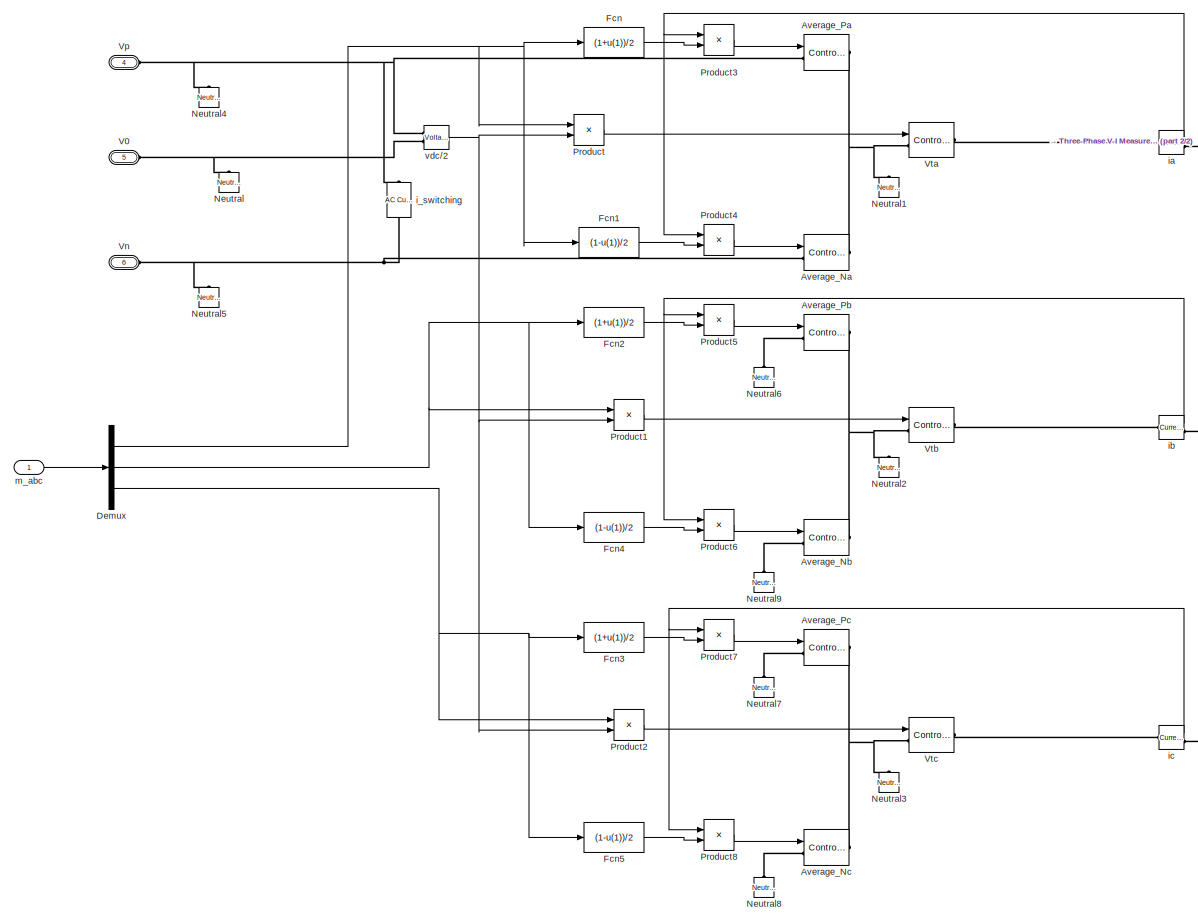
[diagram: VSC - part 1/2, most of the canvas]
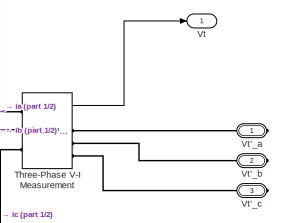
[diagram: VSC - part 2/2, middle right region]
BLOCK [SubSystem] VSC
  Ports = [1, 1, 0, 0, 0, 3, 3]
  RequestExecContextInheritance = off
  Variant = off
BLOCK [Reference] VSC/Average_Na  REF=powerlib/Electrical
Sources/Controlled Current Source
  Ports = [1, 0, 0, 0, 0, 1, 1]
  SourceBlock = powerlib/Electrical\nSources/Controlled Current Source
  SourceType = Controlled Current Source
BLOCK [Reference] VSC/Average_Nb  REF=powerlib/Electrical
Sources/Controlled Current Source
  Ports = [1, 0, 0, 0, 0, 1, 1]
  SourceBlock = powerlib/Electrical\nSources/Controlled Current Source
  SourceType = Controlled Current Source
BLOCK [Reference] VSC/Average_Nc  REF=powerlib/Electrical
Sources/Controlled Current Source
  Ports = [1, 0, 0, 0, 0, 1, 1]
  SourceBlock = powerlib/Electrical\nSources/Controlled Current Source
  SourceType = Controlled Current Source
BLOCK [Reference] VSC/Average_Pa  REF=powerlib/Electrical
Sources/Controlled Current Source
  Ports = [1, 0, 0, 0, 0, 1, 1]
  SourceBlock = powerlib/Electrical\nSources/Controlled Current Source
  SourceType = Controlled Current Source
BLOCK [Reference] VSC/Average_Pb  REF=powerlib/Electrical
Sources/Controlled Current Source
  Ports = [1, 0, 0, 0, 0, 1, 1]
  SourceBlock = powerlib/Electrical\nSources/Controlled Current Source
  SourceType = Controlled Current Source
BLOCK [Reference] VSC/Average_Pc  REF=powerlib/Electrical
Sources/Controlled Current Source
  Ports = [1, 0, 0, 0, 0, 1, 1]
  SourceBlock = powerlib/Electrical\nSources/Controlled Current Source
  SourceType = Controlled Current Source
BLOCK [Demux] VSC/Demux
  DisplayOption = bar
  Outputs = 3
  Ports = [1, 3]
BLOCK [Fcn] VSC/Fcn
  Expr = (1+u(1))/2
BLOCK [Fcn] VSC/Fcn1
  Expr = (1-u(1))/2
BLOCK [Fcn] VSC/Fcn2
  Expr = (1+u(1))/2
BLOCK [Fcn] VSC/Fcn3
  Expr = (1+u(1))/2
BLOCK [Fcn] VSC/Fcn4
  Expr = (1-u(1))/2
BLOCK [Fcn] VSC/Fcn5
  Expr = (1-u(1))/2
BLOCK [Reference] VSC/Neutral  REF=powerlib/Elements/Neutral
  AttributesFormatString = node %<NodeNumber>
  Ports = [0, 0, 0, 0, 0, 1]
  SourceBlock = powerlib/Elements/Neutral
  SourceType = Neutral
BLOCK [Reference] VSC/Neutral1  REF=powerlib/Elements/Neutral
  AttributesFormatString = node %<NodeNumber>
  Ports = [0, 0, 0, 0, 0, 1]
  SourceBlock = powerlib/Elements/Neutral
  SourceType = Neutral
BLOCK [Reference] VSC/Neutral2  REF=powerlib/Elements/Neutral
  AttributesFormatString = node %<NodeNumber>
  Ports = [0, 0, 0, 0, 0, 1]
  SourceBlock = powerlib/Elements/Neutral
  SourceType = Neutral
BLOCK [Reference] VSC/Neutral3  REF=powerlib/Elements/Neutral
  AttributesFormatString = node %<NodeNumber>
  Ports = [0, 0, 0, 0, 0, 1]
  SourceBlock = powerlib/Elements/Neutral
  SourceType = Neutral
BLOCK [Reference] VSC/Neutral4  REF=powerlib/Elements/Neutral
  AttributesFormatString = node %<NodeNumber>
  Ports = [0, 0, 0, 0, 0, 1]
  SourceBlock = powerlib/Elements/Neutral
  SourceType = Neutral
BLOCK [Reference] VSC/Neutral5  REF=powerlib/Elements/Neutral
  AttributesFormatString = node %<NodeNumber>
  Ports = [0, 0, 0, 0, 0, 1]
  SourceBlock = powerlib/Elements/Neutral
  SourceType = Neutral
BLOCK [Reference] VSC/Neutral6  REF=powerlib/Elements/Neutral
  AttributesFormatString = node %<NodeNumber>
  Ports = [0, 0, 0, 0, 0, 1]
  SourceBlock = powerlib/Elements/Neutral
  SourceType = Neutral
BLOCK [Reference] VSC/Neutral7  REF=powerlib/Elements/Neutral
  AttributesFormatString = node %<NodeNumber>
  Ports = [0, 0, 0, 0, 0, 1]
  SourceBlock = powerlib/Elements/Neutral
  SourceType = Neutral
BLOCK [Reference] VSC/Neutral8  REF=powerlib/Elements/Neutral
  AttributesFormatString = node %<NodeNumber>
  Ports = [0, 0, 0, 0, 0, 1]
  SourceBlock = powerlib/Elements/Neutral
  SourceType = Neutral
BLOCK [Reference] VSC/Neutral9  REF=powerlib/Elements/Neutral
  AttributesFormatString = node %<NodeNumber>
  Ports = [0, 0, 0, 0, 0, 1]
  SourceBlock = powerlib/Elements/Neutral
  SourceType = Neutral
BLOCK [Product] VSC/Product
  InputSameDT = off
  OutDataTypeStr = Inherit: Inherit via internal rule
  Ports = [2, 1]
  SaturateOnIntegerOverflow = off
BLOCK [Product] VSC/Product1
  InputSameDT = off
  OutDataTypeStr = Inherit: Inherit via internal rule
  Ports = [2, 1]
  SaturateOnIntegerOverflow = off
BLOCK [Product] VSC/Product2
  InputSameDT = off
  OutDataTypeStr = Inherit: Inherit via internal rule
  Ports = [2, 1]
  SaturateOnIntegerOverflow = off
BLOCK [Product] VSC/Product3
  InputSameDT = off
  OutDataTypeStr = Inherit: Inherit via internal rule
  Ports = [2, 1]
  SaturateOnIntegerOverflow = off
BLOCK [Product] VSC/Product4
  InputSameDT = off
  OutDataTypeStr = Inherit: Inherit via internal rule
  Ports = [2, 1]
  SaturateOnIntegerOverflow = off
BLOCK [Product] VSC/Product5
  InputSameDT = off
  OutDataTypeStr = Inherit: Inherit via internal rule
  Ports = [2, 1]
  SaturateOnIntegerOverflow = off
BLOCK [Product] VSC/Product6
  InputSameDT = off
  OutDataTypeStr = Inherit: Inherit via internal rule
  Ports = [2, 1]
  SaturateOnIntegerOverflow = off
BLOCK [Product] VSC/Product7
  InputSameDT = off
  OutDataTypeStr = Inherit: Inherit via internal rule
  Ports = [2, 1]
  SaturateOnIntegerOverflow = off
BLOCK [Product] VSC/Product8
  InputSameDT = off
  OutDataTypeStr = Inherit: Inherit via internal rule
  Ports = [2, 1]
  SaturateOnIntegerOverflow = off
BLOCK [Reference] VSC/Three-Phase V-I Measurement  REF=powerlib/Measurements/Three-Phase
V-I Measurement
  Ports = [0, 2, 0, 0, 0, 3, 3]
  SourceBlock = powerlib/Measurements/Three-Phase\nV-I Measurement
  SourceType = Three-Phase VI Measurement
BLOCK [PMIOPort] VSC/V0
  Port = 5
  Side = Left
BLOCK [PMIOPort] VSC/Vn
  Port = 6
  Side = Left
BLOCK [PMIOPort] VSC/Vp
  Port = 4
  Side = Left
BLOCK [Outport] VSC/Vt
  IconDisplay = Port number
BLOCK [PMIOPort] VSC/Vt'_a
  Port = 1
  Side = Right
BLOCK [PMIOPort] VSC/Vt'_b
  Port = 2
  Side = Right
BLOCK [PMIOPort] VSC/Vt'_c
  Port = 3
  Side = Right
BLOCK [Reference] VSC/Vta  REF=powerlib/Electrical
Sources/Controlled Voltage Source
  Ports = [1, 0, 0, 0, 0, 1, 1]
  SourceBlock = powerlib/Electrical\nSources/Controlled Voltage Source
  SourceType = Controlled Voltage Source
BLOCK [Reference] VSC/Vtb  REF=powerlib/Electrical
Sources/Controlled Voltage Source
  Ports = [1, 0, 0, 0, 0, 1, 1]
  SourceBlock = powerlib/Electrical\nSources/Controlled Voltage Source
  SourceType = Controlled Voltage Source
BLOCK [Reference] VSC/Vtc  REF=powerlib/Electrical
Sources/Controlled Voltage Source
  Ports = [1, 0, 0, 0, 0, 1, 1]
  SourceBlock = powerlib/Electrical\nSources/Controlled Voltage Source
  SourceType = Controlled Voltage Source
BLOCK [Reference] VSC/i_switching  REF=powerlib/Electrical
Sources/AC Current Source
  Ports = [0, 0, 0, 0, 0, 1, 1]
  SourceBlock = powerlib/Electrical\nSources/AC Current Source
  SourceType = AC Current Source
BLOCK [Reference] VSC/ia  REF=powerlib/Measurements/Current Measurement
  Ports = [0, 1, 0, 0, 0, 1, 1]
  SourceBlock = powerlib/Measurements/Current Measurement
  SourceType = Current Measurement
BLOCK [Reference] VSC/ib  REF=powerlib/Measurements/Current Measurement
  Ports = [0, 1, 0, 0, 0, 1, 1]
  SourceBlock = powerlib/Measurements/Current Measurement
  SourceType = Current Measurement
BLOCK [Reference] VSC/ic  REF=powerlib/Measurements/Current Measurement
  Ports = [0, 1, 0, 0, 0, 1, 1]
  SourceBlock = powerlib/Measurements/Current Measurement
  SourceType = Current Measurement
BLOCK [Inport] VSC/m_abc
  IconDisplay = Port number
BLOCK [Reference] VSC/vdc//2  REF=powerlib/Measurements/Voltage Measurement
  Ports = [0, 1, 0, 0, 0, 2]
  SourceBlock = powerlib/Measurements/Voltage Measurement
  SourceType = Voltage Measurement
BLOCK [Reference] kp1  REF=simulink/Sources/Repeating
Sequence
  Ports = [0, 1]
  SourceBlock = simulink/Sources/Repeating\nSequence
  SourceType = Repeating table
BLOCK [Reference] kp2  REF=simulink/Sources/Repeating
Sequence
  Ports = [0, 1]
  SourceBlock = simulink/Sources/Repeating\nSequence
  SourceType = Repeating table
BLOCK [Reference] kp4  REF=simulink/Sources/Repeating
Sequence
  Ports = [0, 1]
  SourceBlock = simulink/Sources/Repeating\nSequence
  SourceType = Repeating table
BLOCK [Reference] powergui  REF=powerlib/powergui
  Ports = []
  Priority = 2
  SourceBlock = powerlib/powergui
  SourceType = PSB option menu block
  UserDataPersistent = on
NET Alpha-Beta-Zero to abc1:1 -> Gain15:1, Goto43:1
LINE Alpha-Beta-Zero to abc2:1 -> Mux7:2
LINE Constant10:1 -> Divide3:2
LINE Constant11:1 -> Divide4:2
LINE Constant12:1 -> Mux8:2
LINE Constant13:1 -> Mux8:3
LINE Constant14:1 -> Gain18:1
LINE Constant1:1 -> Sum1:3
LINE Constant2:1 -> Sum2:3
LINE Constant3:1 -> Relational Operator:1
LINE Constant4:1 -> Relational Operator1:2
LINE Constant5:1 -> Product6:1
LINE Constant6:1 -> Product1:1
LINE Constant7:1 -> MinMax2:2
NET Constant8:1 -> Goto36:1, Sum8:1
NET Constant9:1 -> Sum10:2, Sum9:2
LINE Current Controller1/1st Gain Shaping1/Gain:1 -> Current Controller1/1st Gain Shaping1/Out1:1
LINE Current Controller1/1st Gain Shaping1/In1:1 -> Current Controller1/1st Gain Shaping1/Resonant1:1
LINE Current Controller1/1st Gain Shaping1/Resonant1:1 -> Current Controller1/1st Gain Shaping1/Transfer Fcn (with initial outputs):1
LINE Current Controller1/1st Gain Shaping1/Transfer Fcn (with initial outputs):1 -> Current Controller1/1st Gain Shaping1/Gain:1
NET Current Controller1/1st Gain Shaping1:1 -> Current Controller1/Scope1:1, Current Controller1/Sum8:1
LINE Current Controller1/1st Gain Shaping2/Gain:1 -> Current Controller1/1st Gain Shaping2/Out1:1
LINE Current Controller1/1st Gain Shaping2/In1:1 -> Current Controller1/1st Gain Shaping2/Resonant1:1
LINE Current Controller1/1st Gain Shaping2/Resonant1:1 -> Current Controller1/1st Gain Shaping2/Transfer Fcn (with initial outputs):1
LINE Current Controller1/1st Gain Shaping2/Transfer Fcn (with initial outputs):1 -> Current Controller1/1st Gain Shaping2/Gain:1
NET Current Controller1/1st Gain Shaping2:1 -> Current Controller1/Scope1:2, Current Controller1/Sum9:2
LINE Current Controller1/1st Gain Shaping3/Gain:1 -> Current Controller1/1st Gain Shaping3/Out1:1
LINE Current Controller1/1st Gain Shaping3/In1:1 -> Current Controller1/1st Gain Shaping3/Resonant1:1
LINE Current Controller1/1st Gain Shaping3/Resonant1:1 -> Current Controller1/1st Gain Shaping3/Transfer Fcn (with initial outputs):1
LINE Current Controller1/1st Gain Shaping3/Transfer Fcn (with initial outputs):1 -> Current Controller1/1st Gain Shaping3/Gain:1
LINE Current Controller1/1st Gain Shaping3:1 -> Current Controller1/Sum2:2
LINE Current Controller1/Demux1:1 -> Current Controller1/Sum4:2
LINE Current Controller1/Demux1:2 -> Current Controller1/Sum6:1
LINE Current Controller1/Demux1:3 -> Current Controller1/Sum1:1
NET Current Controller1/Demux2:1 -> Current Controller1/Scope2:1, Current Controller1/Sum8:2
NET Current Controller1/Demux2:2 -> Current Controller1/Scope2:2, Current Controller1/Sum9:1
LINE Current Controller1/Demux2:3 -> Current Controller1/Sum2:1
LINE Current Controller1/Demux:1 -> Current Controller1/Sum4:1
LINE Current Controller1/Demux:2 -> Current Controller1/Sum6:2
LINE Current Controller1/Demux:3 -> Current Controller1/Sum1:2
LINE Current Controller1/Gain1:1 -> Current Controller1/Saturation1:1
LINE Current Controller1/Gain2:1 -> Current Controller1/Saturation2:1
LINE Current Controller1/Gain:1 -> Current Controller1/Saturation:1
NET Current Controller1/It_abc:1 -> Current Controller1/Demux:1, Current Controller1/Scope3:2
NET Current Controller1/It_abc_ref:1 -> Current Controller1/Demux1:1, Current Controller1/Scope3:1
LINE Current Controller1/Mux2:1 -> Current Controller1/m_abc:1
NET Current Controller1/Saturation1:1 -> Current Controller1/Mux2:2, Current Controller1/Scope:2
NET Current Controller1/Saturation2:1 -> Current Controller1/Mux2:3, Current Controller1/Scope:3
NET Current Controller1/Saturation:1 -> Current Controller1/Mux2:1, Current Controller1/Scope:1
LINE Current Controller1/Scope3/Demux2:1 -> Current Controller1/Scope3/Mux1:1
LINE Current Controller1/Scope3/Demux2:2 -> Current Controller1/Scope3/Mux2:1
LINE Current Controller1/Scope3/Demux2:3 -> Current Controller1/Scope3/Mux4:1
LINE Current Controller1/Scope3/Demux3:1 -> Current Controller1/Scope3/Mux1:2
LINE Current Controller1/Scope3/Demux3:2 -> Current Controller1/Scope3/Mux2:2
LINE Current Controller1/Scope3/Demux3:3 -> Current Controller1/Scope3/Mux4:2
LINE Current Controller1/Scope3/I_meas:1 -> Current Controller1/Scope3/Demux3:1
LINE Current Controller1/Scope3/I_ref:1 -> Current Controller1/Scope3/Demux2:1
LINE Current Controller1/Scope3/Mux1:1 -> Current Controller1/Scope3/Mux3:1
LINE Current Controller1/Scope3/Mux2:1 -> Current Controller1/Scope3/Mux3:2
LINE Current Controller1/Scope3/Mux3:1 -> Current Controller1/Scope3/I_ref_meas:1
LINE Current Controller1/Scope3/Mux4:1 -> Current Controller1/Scope3/Mux3:3
LINE Current Controller1/Scope3:1 -> Current Controller1/I_ref_meas:1
LINE Current Controller1/Sum1:1 -> Current Controller1/1st Gain Shaping3:1
LINE Current Controller1/Sum2:1 -> Current Controller1/Gain2:1
LINE Current Controller1/Sum4:1 -> Current Controller1/1st Gain Shaping1:1
LINE Current Controller1/Sum6:1 -> Current Controller1/1st Gain Shaping2:1
LINE Current Controller1/Sum8:1 -> Current Controller1/Gain:1
LINE Current Controller1/Sum9:1 -> Current Controller1/Gain1:1
LINE Current Controller1/Vs_abc:1 -> Current Controller1/Demux2:1
LINE Current Controller1:1 -> Goto3:1
LINE Current Controller1:2 -> Scope3:1
LINE Demux1:1 -> Goto6:1
LINE Demux1:2 -> Goto21:1
LINE Demux2:1 -> Gain4:1
LINE Demux2:2 -> Gain2:1
LINE Demux3:1 -> Goto17:1
LINE Demux3:2 -> Goto10:1
LINE Divide1:1 -> Sqrt1:1
LINE Divide2:1 -> Sqrt2:1
LINE Divide3:1 -> Gain7:1
LINE Divide4:1 -> Gain8:1
LINE Divide6:1 -> Mux11:1
LINE Divide8:1 -> Mux11:2
LINE From106:1 -> Divide8:2
LINE From10:1 -> Product13:2
LINE From11:1 -> Product14:2
LINE From12:1 -> Product15:2
LINE From13:1 -> Mux2:2
LINE From14:1 -> Sequence Analyzer2:1
LINE From15:1 -> Current Controller1:3
LINE From16:1 -> Scope7:2
LINE From17:1 -> Scope7:3
LINE From18:1 -> Sum1:1
LINE From19:1 -> Sum1:2
LINE From1:1 -> Math Function9:1
LINE From20:1 -> Mux2:1
LINE From21:1 -> Sum2:1
LINE From22:1 -> Sum2:2
LINE From23:1 -> RMS3:1
LINE From24:1 -> Switch:2
LINE From27:1 -> Mux4:2
LINE From28:1 -> Relational Operator1:1
LINE From29:1 -> Product6:2
LINE From2:1 -> Math Function10:1
LINE From30:1 -> Product1:2
LINE From31:1 -> Sum7:2
LINE From32:1 -> Power (3ph, Instantaneous):1
LINE From34:1 -> Power (3ph, Instantaneous):2
LINE From35:1 -> RMS1:1
LINE From36:1 -> Math Function1:1
LINE From37:1 -> Mux12:1
LINE From38:1 -> Trigonometric Function5:1
LINE From39:1 -> Product2:2
LINE From3:1 -> Sum6:2
LINE From40:1 -> Trigonometric Function1:1
LINE From41:1 -> Product3:2
LINE From42:1 -> Trigonometric Function3:1
LINE From43:1 -> Product4:2
LINE From44:1 -> Trigonometric Function2:1
LINE From45:1 -> Gain5:1
LINE From46:1 -> Sum14:1
NET From47:1 -> Sum10:1, Sum9:1, Trigonometric Function4:1
LINE From48:1 -> Mux12:2
LINE From49:1 -> Product7:2
LINE From4:1 -> Current Controller1:1
LINE From50:1 -> Math Function2:1
LINE From51:1 -> Product8:2
LINE From52:1 -> Math Function3:1
LINE From53:1 -> Product9:2
LINE From54:1 -> Math Function4:1
LINE From55:1 -> Product10:2
LINE From56:1 -> Math Function6:1
LINE From57:1 -> Sum22:1
LINE From58:1 -> Math Function7:1
LINE From59:1 -> Sum22:2
LINE From5:1 -> VSC:1
LINE From60:1 -> Product11:1
LINE From61:1 -> Sum24:1
LINE From62:1 -> Sum24:2
LINE From63:1 -> Product12:1
LINE From64:1 -> Sum25:1
LINE From65:1 -> Sum25:2
LINE From66:1 -> RMS2:1
LINE From67:1 -> Mux9:1
LINE From68:1 -> Mux9:2
LINE From69:1 -> Mux10:1
LINE From6:1 -> Current Controller1:2
LINE From70:1 -> Mux10:2
LINE From71:1 -> Sum14:2
LINE From72:1 -> Scope5:2
LINE From73:1 -> Sum15:1
LINE From74:1 -> Math Function12:1
LINE From75:1 -> Sum15:2
LINE From76:1 -> Mux7:1
LINE From77:1 -> RMS4:1
LINE From7:1 -> Product13:1
LINE From81:1 -> Gain1:1
LINE From83:1 -> Math Function11:1
LINE From8:1 -> Sequence Analyzer1:1
LINE From9:1 -> PLL (3ph):1
LINE Gain10:1 -> Scope5:1
LINE Gain11:1 -> Scope4:1
NET Gain12:1 -> Product14:1, Product15:1
LINE Gain14:1 -> MinMax5:1
LINE Gain15:1 -> Mux4:1
LINE Gain16:1 -> Mux5:3
LINE Gain17:1 -> Mux5:4
NET Gain18:1 -> Divide6:1, Divide8:1
LINE Gain1:1 -> Divide6:2
NET Gain2:1 -> Goto19:1, Sum5:1
NET Gain3:1 -> Divide1:2, Divide2:2
NET Gain4:1 -> Goto18:1, Sum5:2
LINE Gain5:1 -> Product5:2
NET Gain6:1 -> MinMax1:1, MinMax:1
LINE Gain7:1 -> Switch:1
LINE Gain9:1 -> Mux8:1
LINE Math Function10:1 -> Sum3:2
LINE Math Function11:1 -> Sqrt6:1
LINE Math Function12:1 -> Sqrt5:1
LINE Math Function1:1 -> Product7:1
LINE Math Function2:1 -> Product8:1
LINE Math Function3:1 -> Product9:1
LINE Math Function4:1 -> Product10:1
LINE Math Function5:1 -> Sum19:1
LINE Math Function6:1 -> Sum20:2
LINE Math Function7:1 -> Sum20:1
LINE Math Function8:1 -> Sum19:2
LINE Math Function9:1 -> Sum3:1
LINE MinMax1:1 -> Sum8:3
LINE MinMax2:1 -> Goto35:1
LINE MinMax3:1 -> Goto37:1
LINE MinMax4:1 -> Goto38:1
LINE MinMax5:1 -> Relational Operator:2
LINE MinMax:1 -> Sum8:2
NET Mux11:1 -> Alpha-Beta-Zero to abc1:1, Scope2:1
LINE Mux12:1 -> Scope2:2
LINE Mux2:1 -> Scope7:1
LINE Mux3:1 -> Goto16:1
LINE Mux4:1 -> Scope5:3
LINE Mux5:1 -> Scope1:1
LINE Mux6:1 -> Alpha-Beta-Zero to abc2:1
LINE Mux7:1 -> Scope1:2
LINE PLL (3ph):2 -> Goto4:1
LINE Power (3ph, Instantaneous):1 -> Mux3:1
LINE Power (3ph, Instantaneous):2 -> Mux3:2
LINE Product10:1 -> Sum12:2
LINE Product11:1 -> Divide3:1
LINE Product12:1 -> Divide4:1
LINE Product13:1 -> Gain12:1
LINE Product14:1 -> Sum4:2
LINE Product15:1 -> Sum13:2
LINE Product16:1 -> Goto9:1
LINE Product1:1 -> Sum7:1
NET Product2:1 -> Goto24:1, Mux5:1
NET Product3:1 -> Goto25:1, Mux5:2
NET Product4:1 -> Gain16:1, Goto26:1
NET Product5:1 -> Gain17:1, Goto27:1
LINE Product6:1 -> Sum6:1
LINE Product7:1 -> Sum11:1
LINE Product8:1 -> Sum11:2
LINE Product9:1 -> Sum12:1
LINE RMS1:1 -> Gain6:1
LINE RMS2:1 -> Gain9:1
LINE RMS3:1 -> Gain14:1
LINE RMS4:1 -> Gain10:1
LINE Relational Operator1:1 -> Product17:2
LINE Relational Operator:1 -> Product16:1
LINE Sequence Analyzer1:1 -> Demux3:1
LINE Sequence Analyzer2:1 -> Demux1:1
NET Sequence Analyzer2:2 -> Demux2:1, Gain11:1
LINE Sqrt1:1 -> Goto39:1
LINE Sqrt2:1 -> Goto40:1
LINE Sqrt3:1 -> Mux8:4
LINE Sqrt4:1 -> Mux8:5
LINE Sqrt5:1 -> Divide6:3
LINE Sqrt6:1 -> Divide8:3
NET Sqrt:1 -> Sum21:2, Sum23:2
LINE Sum10:1 -> Trigonometric Function7:1
NET Sum11:1 -> Sum21:1, Sum23:1
LINE Sum12:1 -> Math Function5:1
LINE Sum13:1 -> Sqrt4:1
LINE Sum14:1 -> Mux6:1
LINE Sum15:1 -> Mux6:2
LINE Sum19:1 -> Sqrt:1
LINE Sum1:1 -> Goto12:1
LINE Sum20:1 -> Math Function8:1
LINE Sum21:1 -> Divide1:1
LINE Sum22:1 -> Gain3:1
LINE Sum23:1 -> Divide2:1
LINE Sum24:1 -> Product11:2
LINE Sum25:1 -> Product12:2
LINE Sum2:1 -> Goto22:1
NET Sum3:1 -> Sum13:1, Sum4:1
LINE Sum4:1 -> Sqrt3:1
LINE Sum5:1 -> Goto8:1
LINE Sum6:1 -> Goto33:1
LINE Sum7:1 -> Goto34:1
LINE Sum8:1 -> MinMax2:1
LINE Sum9:1 -> Trigonometric Function6:1
LINE Switch1:1 -> Goto11:1
LINE Switch:1 -> Goto41:1
LINE Three-Phase V-I Measurement1:1 -> Goto1:1
LINE Three-Phase V-I Measurement1:2 -> Goto7:1
LINE Three-Phase V-I Measurement3:1 -> Goto5:1
LINE Trigonometric Function1:1 -> Product3:1
LINE Trigonometric Function2:1 -> Product5:1
LINE Trigonometric Function3:1 -> Product4:1
NET Trigonometric Function4:1 -> MinMax3:1, MinMax4:1
LINE Trigonometric Function5:1 -> Product2:1
NET Trigonometric Function6:1 -> MinMax3:2, MinMax4:2
NET Trigonometric Function7:1 -> MinMax3:3, MinMax4:3
NET VSC/Demux:1 -> VSC/Fcn1:1, VSC/Fcn:1, VSC/Product:1
NET VSC/Demux:2 -> VSC/Fcn2:1, VSC/Fcn4:1, VSC/Product1:1
NET VSC/Demux:3 -> VSC/Fcn3:1, VSC/Fcn5:1, VSC/Product2:1
LINE VSC/Fcn1:1 -> VSC/Product4:2
LINE VSC/Fcn2:1 -> VSC/Product5:2
LINE VSC/Fcn3:1 -> VSC/Product7:2
LINE VSC/Fcn4:1 -> VSC/Product6:2
LINE VSC/Fcn5:1 -> VSC/Product8:2
LINE VSC/Fcn:1 -> VSC/Product3:2
LINE VSC/Product1:1 -> VSC/Vtb:1
LINE VSC/Product2:1 -> VSC/Vtc:1
LINE VSC/Product3:1 -> VSC/Average_Pa:1
LINE VSC/Product4:1 -> VSC/Average_Na:1
LINE VSC/Product5:1 -> VSC/Average_Pb:1
LINE VSC/Product6:1 -> VSC/Average_Nb:1
LINE VSC/Product7:1 -> VSC/Average_Pc:1
LINE VSC/Product8:1 -> VSC/Average_Nc:1
LINE VSC/Product:1 -> VSC/Vta:1
LINE VSC/Three-Phase V-I Measurement:1 -> VSC/Vt:1
NET VSC/ia:1 -> VSC/Product3:1, VSC/Product4:1
NET VSC/ib:1 -> VSC/Product5:1, VSC/Product6:1
NET VSC/ic:1 -> VSC/Product7:1, VSC/Product8:1
LINE VSC/m_abc:1 -> VSC/Demux:1
NET VSC/vdc//2:1 -> VSC/Product1:2, VSC/Product2:2, VSC/Product:2
LINE VSC:1 -> Goto2:1
LINE kp1:1 -> Product16:2
LINE kp2:1 -> Gain13:1
LINE kp4:1 -> Switch1:2
PNET net1: 690V 60Hz:LConn1 -- Ground:LConn1 -- Parallel RLC Branch1:RConn1 -- Parallel RLC Branch:RConn1 -- Three-Phase Breaker2:RConn1
PLINE 690V 60Hz:RConn1 -- Rs1  Ls2:RConn1
PLINE 690V 60Hz:RConn2 -- Rs1  Ls2:RConn2
PLINE 690V 60Hz:RConn3 -- Rs1  Ls2:RConn3
PLINE DC Voltage Source1:LConn1 -- VSC:LConn3
PNET net2: DC Voltage Source1:RConn1 -- DC Voltage Source:LConn1 -- Ground1:LConn1 -- VSC:LConn2
PLINE DC Voltage Source:RConn1 -- VSC:LConn1
PLINE Parallel RLC Branch2:LConn1 -- Three-Phase Breaker1:RConn1
PNET net3: Parallel RLC Branch2:RConn1 -- Parallel RLC Branch3:LConn1 -- Three-Phase Breaker3:LConn1
PNET net4: Parallel RLC Branch3:RConn1 -- Parallel RLC Branch:LConn1 -- Three-Phase Breaker2:LConn1 -- Three-Phase Breaker3:RConn1
PLINE Rs1  Ls1:LConn1 -- VSC:RConn1
PLINE Rs1  Ls1:LConn2 -- VSC:RConn2
PLINE Rs1  Ls1:LConn3 -- VSC:RConn3
PLINE Rs1  Ls1:RConn1 -- Three-Phase V-I Measurement1:LConn1
PLINE Rs1  Ls1:RConn2 -- Three-Phase V-I Measurement1:LConn2
PLINE Rs1  Ls1:RConn3 -- Three-Phase V-I Measurement1:LConn3
PLINE Rs1  Ls2:LConn1 -- Three-Phase V-I Measurement3:LConn1
PLINE Rs1  Ls2:LConn2 -- Three-Phase V-I Measurement3:LConn2
PLINE Rs1  Ls2:LConn3 -- Three-Phase V-I Measurement3:LConn3
PLINE Rs1  Ls5:LConn1 -- Three-Phase V-I Measurement1:RConn1
PLINE Rs1  Ls5:LConn2 -- Three-Phase V-I Measurement1:RConn2
PLINE Rs1  Ls5:LConn3 -- Three-Phase V-I Measurement1:RConn3
PNET net5: Rs1  Ls5:RConn1 -- Three-Phase Breaker1:LConn1 -- Three-Phase V-I Measurement3:RConn1
PLINE Rs1  Ls5:RConn2 -- Three-Phase V-I Measurement3:RConn2
PLINE Rs1  Ls5:RConn3 -- Three-Phase V-I Measurement3:RConn3
PNET net6: VSC/Average_Na:LConn1 -- VSC/Neutral5:LConn1 -- VSC/Vn:RConn1 -- VSC/i_switching:RConn1
PNET net7: VSC/Average_Na:RConn1 -- VSC/Average_Pa:RConn1 -- VSC/Neutral1:LConn1 -- VSC/Vta:LConn1
PLINE VSC/Average_Nb:LConn1 -- VSC/Neutral9:LConn1
PNET net8: VSC/Average_Nb:RConn1 -- VSC/Average_Pb:RConn1 -- VSC/Neutral2:LConn1 -- VSC/Vtb:LConn1
PLINE VSC/Average_Nc:LConn1 -- VSC/Neutral8:LConn1
PNET net9: VSC/Average_Nc:RConn1 -- VSC/Average_Pc:RConn1 -- VSC/Neutral3:LConn1 -- VSC/Vtc:LConn1
PNET net10: VSC/Average_Pa:LConn1 -- VSC/Neutral4:LConn1 -- VSC/Vp:RConn1 -- VSC/i_switching:LConn1 -- VSC/vdc//2:LConn1
PLINE VSC/Average_Pb:LConn1 -- VSC/Neutral6:LConn1
PLINE VSC/Average_Pc:LConn1 -- VSC/Neutral7:LConn1
PNET net11: VSC/Neutral:LConn1 -- VSC/V0:RConn1 -- VSC/vdc//2:LConn2
PLINE VSC/Three-Phase V-I Measurement:LConn1 -- VSC/ia:RConn1
PLINE VSC/Three-Phase V-I Measurement:LConn2 -- VSC/ib:RConn1
PLINE VSC/Three-Phase V-I Measurement:LConn3 -- VSC/ic:RConn1
PLINE VSC/Three-Phase V-I Measurement:RConn1 -- VSC/Vt'_a:RConn1
PLINE VSC/Three-Phase V-I Measurement:RConn2 -- VSC/Vt'_b:RConn1
PLINE VSC/Three-Phase V-I Measurement:RConn3 -- VSC/Vt'_c:RConn1
PLINE VSC/Vta:RConn1 -- VSC/ia:LConn1
PLINE VSC/Vtb:RConn1 -- VSC/ib:LConn1
PLINE VSC/Vtc:RConn1 -- VSC/ic:LConn1
note: NET lines group one-source signal fan-out (src -> all destinations, sorted); 1:1 wires keep LINE; PNET lines group multi-terminal physical nets as a canonical sorted terminal list (undirected conserving connections); 2-terminal nets keep the pairwise PLINE form
